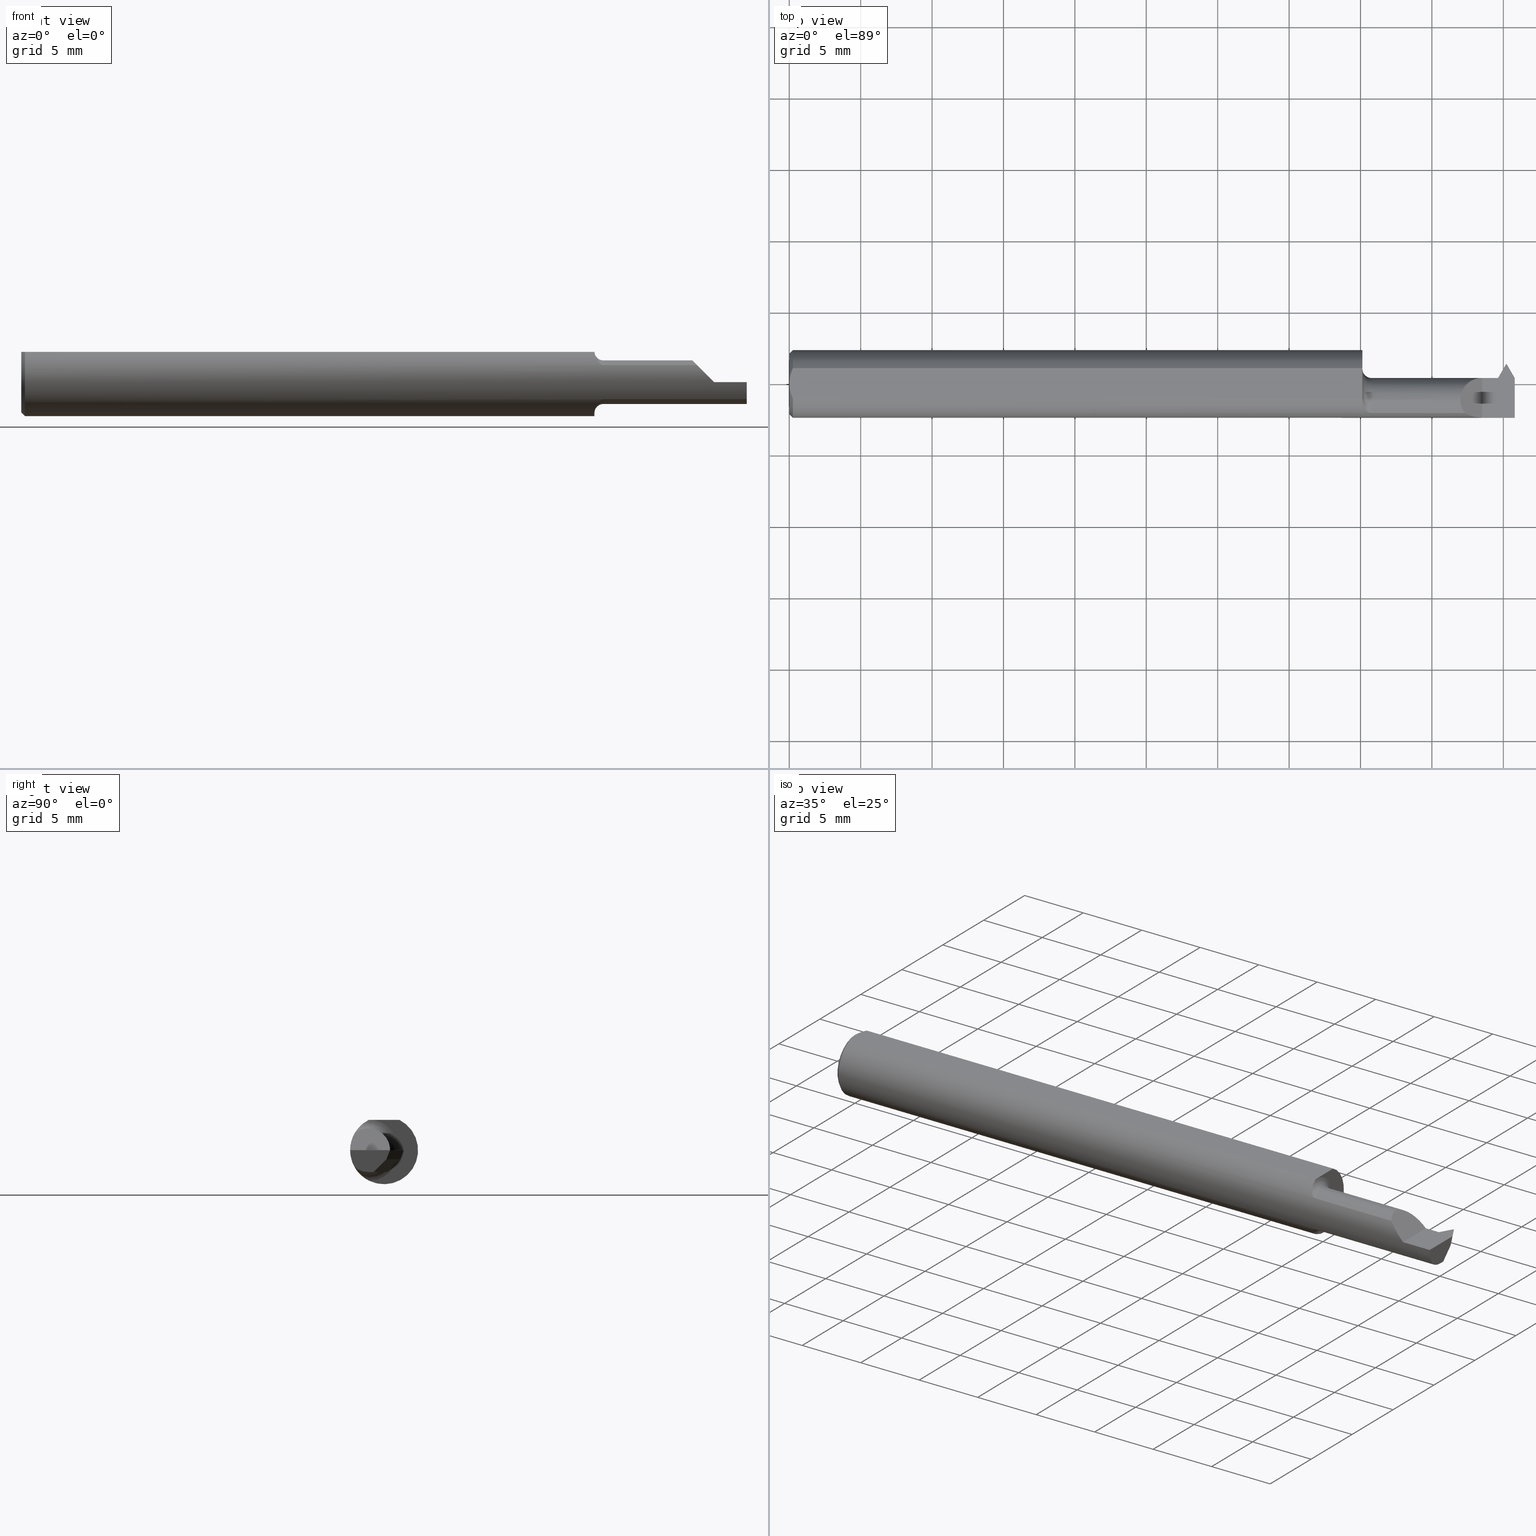
[diagram: canonical four-view strip — front | top / right | iso, engineering-drawing reading convention]
A machine part, canonical four-view strip (front | top / right | iso — engineering-drawing reading convention). The complete STEP part file that produces these views, byte-faithful:
ISO-10303-21;
HEADER;
FILE_DESCRIPTION (( 'STEP AP203' ),
    '1' );
FILE_NAME ('230166-TT150350.STEP',
    '2025-04-24T23:00:52',
    ( '' ),
    ( '' ),
    'SwSTEP 2.0',
    'SolidWorks 2024',
    '' );
FILE_SCHEMA (( 'CONFIG_CONTROL_DESIGN' ));
ENDSEC;

DATA;
#1 = CARTESIAN_POINT ( 'NONE',  ( 1.954060689770794390, 0.01640000000000000138, 0.000000000000000000 ) ) ;
#2 = ADVANCED_FACE ( 'NONE', ( #12 ), #865, .T. ) ;
#3 = EDGE_CURVE ( 'NONE', #419, #258, #812, .T. ) ;
#4 = ORIENTED_EDGE ( 'NONE', *, *, #611, .F. ) ;
#5 = CARTESIAN_POINT ( 'NONE',  ( 1.604999999999999982, -0.08098532110091725966, 0.04692907165266890779 ) ) ;
#6 = VECTOR ( 'NONE', #91, 39.37007874015748143 ) ;
#7 = ADVANCED_FACE ( 'NONE', ( #106 ), #160, .F. ) ;
#8 = LINE ( 'NONE', #421, #20 ) ;
#9 = ORIENTED_EDGE ( 'NONE', *, *, #845, .T. ) ;
#10 = DIRECTION ( 'NONE',  ( -0.8493849684870443673, -0.4903926402016102193, 0.1950903220161287477 ) ) ;
#11 = LINE ( 'NONE', #564, #755 ) ;
#12 = FACE_OUTER_BOUND ( 'NONE', #356, .T. ) ;
#13 = EDGE_CURVE ( 'NONE', #851, #14, #469, .T. ) ;
#14 = VERTEX_POINT ( 'NONE', #877 ) ;
#15 = DIRECTION ( 'NONE',  ( 0.000000000000000000, 0.000000000000000000, -1.000000000000000000 ) ) ;
#16 = DIRECTION ( 'NONE',  ( 0.000000000000000000, 1.000000000000000000, 0.000000000000000000 ) ) ;
#17 = VECTOR ( 'NONE', #368, 39.37007874015748854 ) ;
#18 = ORIENTED_EDGE ( 'NONE', *, *, #234, .T. ) ;
#19 = CYLINDRICAL_SURFACE ( 'NONE', #813, 0.06000000000000010880 ) ;
#20 = VECTOR ( 'NONE', #147, 39.37007874015748143 ) ;
#21 = CARTESIAN_POINT ( 'NONE',  ( 1.943946148618878711, 0.01485783581530495702, -0.01565785573287657370 ) ) ;
#22 = AXIS2_PLACEMENT_3D ( 'NONE', #24, #307, #524 ) ;
#23 = ORIENTED_EDGE ( 'NONE', *, *, #902, .F. ) ;
#24 = CARTESIAN_POINT ( 'NONE',  ( 1.963203925300547770, -1.915580742660970559, 0.3015290722966430526 ) ) ;
#25 = CARTESIAN_POINT ( 'NONE',  ( 2.000000000000000000, -0.02865073613549888945, -0.06000000000000009492 ) ) ;
#26 = CC_DESIGN_APPROVAL ( #353, ( #262 ) ) ;
#27 = ORIENTED_EDGE ( 'NONE', *, *, #645, .T. ) ;
#28 = PLANE ( 'NONE',  #756 ) ;
#29 = AXIS2_PLACEMENT_3D ( 'NONE', #327, #186, #605 ) ;
#30 = LINE ( 'NONE', #311, #176 ) ;
#31 = VERTEX_POINT ( 'NONE', #433 ) ;
#32 = ORIENTED_EDGE ( 'NONE', *, *, #736, .F. ) ;
#33 = CARTESIAN_POINT ( 'NONE',  ( 2.999519565323742037E-32, -0.09359999999999998876, 2.449293598294716768E-16 ) ) ;
#34 = CARTESIAN_POINT ( 'NONE',  ( 1.975910489186450070, 0.009299344354121510947, -0.06000000000000009492 ) ) ;
#35 = ORIENTED_EDGE ( 'NONE', *, *, #142, .T. ) ;
#36 = VECTOR ( 'NONE', #38, 39.37007874015748854 ) ;
#37 = ORIENTED_EDGE ( 'NONE', *, *, #800, .F. ) ;
#38 = DIRECTION ( 'NONE',  ( 0.4999999999999949485, 0.8660254037844414832, -0.000000000000000000 ) ) ;
#39 = CARTESIAN_POINT ( 'NONE',  ( 1.954060689770794390, 0.01640000000000000138, 0.000000000000000000 ) ) ;
#40 = ORIENTED_EDGE ( 'NONE', *, *, #81, .T. ) ;
#41 = ORGANIZATION ( 'UNSPECIFIED', 'UNSPECIFIED', '' ) ;
#42 = ORIENTED_EDGE ( 'NONE', *, *, #493, .F. ) ;
#43 = CARTESIAN_POINT ( 'NONE',  ( 0.000000000000000000, 0.000000000000000000, 0.08359999999999992437 ) ) ;
#44 = ADVANCED_FACE ( 'NONE', ( #154 ), #540, .F. ) ;
#45 = ORIENTED_EDGE ( 'NONE', *, *, #78, .F. ) ;
#46 = ORIENTED_EDGE ( 'NONE', *, *, #252, .F. ) ;
#47 = SECURITY_CLASSIFICATION_LEVEL ( 'unclassified' ) ;
#48 = CARTESIAN_POINT ( 'NONE',  ( 1.956990757487067079, 0.01077285534794741179, -0.02540405621110922510 ) ) ;
#49 = CARTESIAN_POINT ( 'NONE',  ( 2.049328232372210845, -0.5527090949271177278, -0.7491717006560224545 ) ) ;
#50 = CIRCLE ( 'NONE', #272, 0.06000000000000010880 ) ;
#51 = ORIENTED_EDGE ( 'NONE', *, *, #753, .T. ) ;
#52 = APPROVAL_ROLE ( '' ) ;
#53 = CC_DESIGN_PERSON_AND_ORGANIZATION_ASSIGNMENT ( #63, #133, ( #417 ) ) ;
#54 = CARTESIAN_POINT ( 'NONE',  ( 1.599896904768519645, -0.08038899622277627388, 0.04797029363367905086 ) ) ;
#55 = DIRECTION ( 'NONE',  ( 0.1950903220161286922, 0.000000000000000000, 0.9807852804032303196 ) ) ;
#56 = ADVANCED_FACE ( 'NONE', ( #383 ), #717, .F. ) ;
#57 = ORIENTED_EDGE ( 'NONE', *, *, #297, .T. ) ;
#58 = COORDINATED_UNIVERSAL_TIME_OFFSET ( 8, 0, .BEHIND. ) ;
#59 = CARTESIAN_POINT ( 'NONE',  ( 2.000000000000000000, 0.006349263864501371486, -0.02499999999999975853 ) ) ;
#60 = DIRECTION ( 'NONE',  ( 0.4999999999999950595, 0.8660254037844415942, 0.000000000000000000 ) ) ;
#61 = VECTOR ( 'NONE', #261, 39.37007874015748143 ) ;
#62 = VERTEX_POINT ( 'NONE', #894 ) ;
#63 = PERSON_AND_ORGANIZATION ( #89, #41 ) ;
#64 = VECTOR ( 'NONE', #633, 39.37007874015748854 ) ;
#65 = CARTESIAN_POINT ( 'NONE',  ( 1.594147244866249480, -0.07760540797414829106, 0.05237236133055872545 ) ) ;
#66 = CARTESIAN_POINT ( 'NONE',  ( 1.957068903166937490, 0.01029554025176964566, -0.02636921982137713227 ) ) ;
#67 = EDGE_CURVE ( 'NONE', #744, #851, #752, .T. ) ;
#68 = ADVANCED_FACE ( 'NONE', ( #277 ), #692, .T. ) ;
#69 = ORIENTED_EDGE ( 'NONE', *, *, #315, .F. ) ;
#70 = DIRECTION ( 'NONE',  ( 1.000000000000000000, 0.000000000000000000, -0.000000000000000000 ) ) ;
#71 = LINE ( 'NONE', #265, #381 ) ;
#72 = EDGE_LOOP ( 'NONE', ( #730, #819, #580, #701, #646, #121, #218, #141, #680, #116, #713, #324 ) ) ;
#73 = PLANE ( 'NONE',  #333 ) ;
#74 = ADVANCED_FACE ( 'NONE', ( #758 ), #400, .F. ) ;
#75 = DIRECTION ( 'NONE',  ( -1.000000000000000000, -0.000000000000000000, -0.000000000000000000 ) ) ;
#76 = PRODUCT ( '230166-TT150350', '230166-TT150350', '', ( #620 ) ) ;
#77 = EDGE_LOOP ( 'NONE', ( #312, #452, #436, #708, #544, #515 ) ) ;
#78 = EDGE_CURVE ( 'NONE', #613, #769, #130, .T. ) ;
#79 = CARTESIAN_POINT ( 'NONE',  ( 1.956697580114520996, 0.01183277195065880402, -0.02296100594190202820 ) ) ;
#80 = LINE ( 'NONE', #355, #895 ) ;
#81 = EDGE_CURVE ( 'NONE', #263, #606, #621, .T. ) ;
#82 = EDGE_LOOP ( 'NONE', ( #844, #754, #814, #45 ) ) ;
#83 = FACE_OUTER_BOUND ( 'NONE', #82, .T. ) ;
#84 = PLANE ( 'NONE',  #893 ) ;
#85 = EDGE_CURVE ( 'NONE', #108, #246, #137, .T. ) ;
#86 = CARTESIAN_POINT ( 'NONE',  ( 1.580000000000000071, 0.05439999999999996921, 5.143516556418903512E-17 ) ) ;
#87 = FACE_OUTER_BOUND ( 'NONE', #172, .T. ) ;
#88 = ORIENTED_EDGE ( 'NONE', *, *, #159, .T. ) ;
#89 = PERSON ( 'UNSPECIFIED', 'UNSPECIFIED', 'UNSPECIFIED', ('UNSPECIFIED'), ('UNSPECIFIED'), ('UNSPECIFIED') ) ;
#90 = ORIENTED_EDGE ( 'NONE', *, *, #861, .T. ) ;
#91 = DIRECTION ( 'NONE',  ( 3.726558580289354784E-15, -0.7071067811865434649, -0.7071067811865516806 ) ) ;
#92 = CARTESIAN_POINT ( 'NONE',  ( 1.580000000000000071, -0.04360000000000009701, 0.000000000000000000 ) ) ;
#93 = ORIENTED_EDGE ( 'NONE', *, *, #103, .T. ) ;
#94 = CARTESIAN_POINT ( 'NONE',  ( 1.580028097935717968, -0.03747530080496248167, 0.08359999999999992437 ) ) ;
#95 = CARTESIAN_POINT ( 'NONE',  ( 1.604999999999999982, -0.08098532110091725966, -0.04692907165266892167 ) ) ;
#96 = VECTOR ( 'NONE', #627, 39.37007874015748854 ) ;
#97 = VECTOR ( 'NONE', #233, 39.37007874015748143 ) ;
#98 = FACE_OUTER_BOUND ( 'NONE', #460, .T. ) ;
#99 = CARTESIAN_POINT ( 'NONE',  ( 1.877413950203119297, -0.08929676188099791578, 0.03258604979688042858 ) ) ;
#100 = ADVANCED_FACE ( 'NONE', ( #682 ), #337, .F. ) ;
#101 = CIRCLE ( 'NONE', #378, 0.06000000000000012268 ) ;
#102 = VERTEX_POINT ( 'NONE', #485 ) ;
#103 = EDGE_CURVE ( 'NONE', #833, #274, #832, .T. ) ;
#104 = CARTESIAN_POINT ( 'NONE',  ( -3.937007874047004035E-05, 0.009299344354121523090, -0.06000000000000009492 ) ) ;
#105 = DIRECTION ( 'NONE',  ( 1.000000000000000000, 0.000000000000000000, 0.000000000000000000 ) ) ;
#106 = FACE_OUTER_BOUND ( 'NONE', #77, .T. ) ;
#107 = AXIS2_PLACEMENT_3D ( 'NONE', #358, #706, #144 ) ;
#108 = VERTEX_POINT ( 'NONE', #624 ) ;
#109 = PLANE ( 'NONE',  #22 ) ;
#110 = FACE_OUTER_BOUND ( 'NONE', #561, .T. ) ;
#111 = DIRECTION ( 'NONE',  ( 0.000000000000000000, -0.7071067811865515695, 0.7071067811865434649 ) ) ;
#112 = EDGE_CURVE ( 'NONE', #320, #486, #629, .T. ) ;
#113 = VERTEX_POINT ( 'NONE', #397 ) ;
#114 =( NAMED_UNIT ( * ) PLANE_ANGLE_UNIT ( ) SI_UNIT ( $, .RADIAN. ) );
#115 = CARTESIAN_POINT ( 'NONE',  ( 1.580094781996997266, -0.04360000000000008313, -0.08282511696339457663 ) ) ;
#116 = ORIENTED_EDGE ( 'NONE', *, *, #85, .T. ) ;
#117 = EDGE_LOOP ( 'NONE', ( #27, #665, #502 ) ) ;
#118 = APPLICATION_PROTOCOL_DEFINITION ( 'international standard', 'config_control_design', 1994, #722 ) ;
#119 = DIRECTION ( 'NONE',  ( 1.000000000000000000, 0.000000000000000000, 0.000000000000000000 ) ) ;
#120 = DIRECTION ( 'NONE',  ( 0.000000000000000000, 0.000000000000000000, 1.000000000000000000 ) ) ;
#121 = ORIENTED_EDGE ( 'NONE', *, *, #493, .T. ) ;
#122 = CARTESIAN_POINT ( 'NONE',  ( 1.587498641497527396, -0.07093482612079118899, 0.06125760364160525578 ) ) ;
#123 = CIRCLE ( 'NONE', #167, 0.02499999999999993894 ) ;
#124 = EDGE_CURVE ( 'NONE', #720, #258, #71, .T. ) ;
#125 = CARTESIAN_POINT ( 'NONE',  ( 1.580000000000000071, 0.09359999999999996101, 0.000000000000000000 ) ) ;
#126 = CIRCLE ( 'NONE', #418, 0.09360000000000001652 ) ;
#127 = EDGE_LOOP ( 'NONE', ( #181, #177, #51 ) ) ;
#128 = COORDINATED_UNIVERSAL_TIME_OFFSET ( 8, 0, .BEHIND. ) ;
#129 = DIRECTION ( 'NONE',  ( -1.000000000000000000, -0.000000000000000000, -0.000000000000000000 ) ) ;
#130 = LINE ( 'NONE', #415, #575 ) ;
#131 = LOCAL_TIME ( 16, 0, 52.00000000000000000, #275 ) ;
#132 = ORIENTED_EDGE ( 'NONE', *, *, #249, .F. ) ;
#133 = PERSON_AND_ORGANIZATION_ROLE ( 'creator' ) ;
#134 = DIRECTION ( 'NONE',  ( -1.000000000000000000, -0.000000000000000000, -0.000000000000000000 ) ) ;
#135 = CC_DESIGN_DATE_AND_TIME_ASSIGNMENT ( #426, #284, ( #262 ) ) ;
#136 = LINE ( 'NONE', #489, #17 ) ;
#137 =( BOUNDED_CURVE ( )  B_SPLINE_CURVE ( 3, ( #748, #66, #209, #547 ),
 .UNSPECIFIED., .F., .T. ) 
 B_SPLINE_CURVE_WITH_KNOTS ( ( 4, 4 ),
 ( 3.467718172919918462, 3.480466911845812028 ),
 .UNSPECIFIED. ) 
 CURVE ( )  GEOMETRIC_REPRESENTATION_ITEM ( )  RATIONAL_B_SPLINE_CURVE ( ( 1.000000000000000000, 0.9999864558505111578, 0.9999864558505111578, 1.000000000000000000 ) ) 
 REPRESENTATION_ITEM ( '' )  );
#138 = ORIENTED_EDGE ( 'NONE', *, *, #13, .F. ) ;
#139 = CARTESIAN_POINT ( 'NONE',  ( 1.957135601257563362, 0.01018251012558078761, -0.02659777442929792471 ) ) ;
#140 = LINE ( 'NONE', #351, #654 ) ;
#141 = ORIENTED_EDGE ( 'NONE', *, *, #809, .F. ) ;
#142 = EDGE_CURVE ( 'NONE', #554, #565, #140, .T. ) ;
#143 = PLANE ( 'NONE',  #726 ) ;
#144 = DIRECTION ( 'NONE',  ( 0.000000000000000000, -0.3746065934159067412, -0.9271838545667895337 ) ) ;
#145 = ORIENTED_EDGE ( 'NONE', *, *, #3, .F. ) ;
#146 = DIRECTION ( 'NONE',  ( 0.000000000000000000, 0.000000000000000000, -1.000000000000000000 ) ) ;
#147 = DIRECTION ( 'NONE',  ( 0.4999999999999998335, 0.8660254037844388186, 0.000000000000000000 ) ) ;
#148 = AXIS2_PLACEMENT_3D ( 'NONE', #740, #111, #474 ) ;
#149 = ORIENTED_EDGE ( 'NONE', *, *, #416, .T. ) ;
#150 = DIRECTION ( 'NONE',  ( -1.000000000000000000, -0.000000000000000000, -0.000000000000000000 ) ) ;
#151 = DIRECTION ( 'NONE',  ( -1.000000000000000000, -0.000000000000000000, -0.000000000000000000 ) ) ;
#152 = EDGE_CURVE ( 'NONE', #62, #390, #205, .T. ) ;
#153 = EDGE_CURVE ( 'NONE', #774, #880, #562, .T. ) ;
#154 = FACE_OUTER_BOUND ( 'NONE', #127, .T. ) ;
#155 = APPROVAL_STATUS ( 'not_yet_approved' ) ;
#156 = DIRECTION ( 'NONE',  ( 1.000000000000000000, 0.000000000000000000, 0.000000000000000000 ) ) ;
#157 = VECTOR ( 'NONE', #189, 39.37007874015748143 ) ;
#158 = CARTESIAN_POINT ( 'NONE',  ( 1.956931742492089121, 0.01051721843676908796, -0.02590997237873919265 ) ) ;
#159 = EDGE_CURVE ( 'NONE', #744, #798, #501, .T. ) ;
#160 = PLANE ( 'NONE',  #29 ) ;
#161 = CARTESIAN_POINT ( 'NONE',  ( 1.580036165555774419, -0.03978508114644318389, 0.08359999999999995213 ) ) ;
#162 = DIRECTION ( 'NONE',  ( 0.000000000000000000, 0.000000000000000000, 1.000000000000000000 ) ) ;
#163 = APPROVAL ( #193, 'UNSPECIFIED' ) ;
#164 = ORIENTED_EDGE ( 'NONE', *, *, #729, .T. ) ;
#165 = DIRECTION ( 'NONE',  ( 0.9937163541535932731, 0.02183600882225971568, 0.1097770295025544546 ) ) ;
#166 = CARTESIAN_POINT ( 'NONE',  ( 1.580000000000000071, -0.04360000000000009701, 0.06000000000000010880 ) ) ;
#167 = AXIS2_PLACEMENT_3D ( 'NONE', #546, #609, #761 ) ;
#168 = DIRECTION ( 'NONE',  ( 1.000000000000000000, -0.000000000000000000, -0.000000000000000000 ) ) ;
#169 = EDGE_CURVE ( 'NONE', #486, #390, #229, .T. ) ;
#170 = CARTESIAN_POINT ( 'NONE',  ( 1.947060689770794273, 0.01639999999999993546, 0.000000000000000000 ) ) ;
#171 = AXIS2_PLACEMENT_3D ( 'NONE', #581, #738, #792 ) ;
#172 = EDGE_LOOP ( 'NONE', ( #684, #294, #392, #211 ) ) ;
#173 = DIRECTION ( 'NONE',  ( -1.000000000000000000, -0.000000000000000000, -0.000000000000000000 ) ) ;
#174 = CARTESIAN_POINT ( 'NONE',  ( 1.863070928347330790, -0.08098532110091727354, 0.04692907165266886615 ) ) ;
#175 = VERTEX_POINT ( 'NONE', #479 ) ;
#176 = VECTOR ( 'NONE', #236, 39.37007874015748143 ) ;
#177 = ORIENTED_EDGE ( 'NONE', *, *, #482, .T. ) ;
#178 = LINE ( 'NONE', #520, #657 ) ;
#179 = DIRECTION ( 'NONE',  ( 0.000000000000000000, -0.1950903220161286922, -0.9807852804032303196 ) ) ;
#180 = EDGE_CURVE ( 'NONE', #384, #62, #136, .T. ) ;
#181 = ORIENTED_EDGE ( 'NONE', *, *, #396, .T. ) ;
#182 = AXIS2_PLACEMENT_3D ( 'NONE', #543, #826, #120 ) ;
#183 = ORIENTED_EDGE ( 'NONE', *, *, #180, .T. ) ;
#184 = CARTESIAN_POINT ( 'NONE',  ( 0.000000000000000000, 0.000000000000000000, 0.000000000000000000 ) ) ;
#185 = CARTESIAN_POINT ( 'NONE',  ( 0.000000000000000000, 0.000000000000000000, 0.000000000000000000 ) ) ;
#186 = DIRECTION ( 'NONE',  ( -1.000000000000000000, 0.000000000000000000, -0.000000000000000000 ) ) ;
#187 = EDGE_CURVE ( 'NONE', #175, #554, #578, .T. ) ;
#188 = ORIENTED_EDGE ( 'NONE', *, *, #103, .F. ) ;
#189 = DIRECTION ( 'NONE',  ( 0.000000000000000000, 1.000000000000000000, 0.000000000000000000 ) ) ;
#190 = DIRECTION ( 'NONE',  ( 0.7071067811865486830, 0.000000000000000000, -0.7071067811865462405 ) ) ;
#191 = DIRECTION ( 'NONE',  ( 1.000000000000000000, 0.000000000000000000, 0.000000000000000000 ) ) ;
#192 = EDGE_LOOP ( 'NONE', ( #57, #586, #338, #393 ) ) ;
#193 = APPROVAL_STATUS ( 'not_yet_approved' ) ;
#194 = DIRECTION ( 'NONE',  ( 0.003319700952923160166, -0.3746045292502683810, -0.9271787455775548636 ) ) ;
#195 = CARTESIAN_POINT ( 'NONE',  ( 1.962007406423369460, -0.04360000000000009701, -0.06000000000000010186 ) ) ;
#196 = ORIENTED_EDGE ( 'NONE', *, *, #782, .T. ) ;
#197 = PERSON_AND_ORGANIZATION ( #89, #41 ) ;
#198 = DIRECTION ( 'NONE',  ( 1.000000000000000000, 0.000000000000000000, 0.000000000000000000 ) ) ;
#199 = ADVANCED_FACE ( 'NONE', ( #87 ), #499, .F. ) ;
#200 = CARTESIAN_POINT ( 'NONE',  ( 1.960841293643284189, -0.01562901005468752061, -0.05500796697060597595 ) ) ;
#201 = VECTOR ( 'NONE', #824, 39.37007874015748143 ) ;
#202 = ORIENTED_EDGE ( 'NONE', *, *, #360, .T. ) ;
#203 = DATE_AND_TIME ( #403, #434 ) ;
#204 = CYLINDRICAL_SURFACE ( 'NONE', #291, 0.06000000000000010880 ) ;
#205 = LINE ( 'NONE', #49, #64 ) ;
#206 = LOCAL_TIME ( 16, 0, 52.00000000000000000, #58 ) ;
#207 = EDGE_LOOP ( 'NONE', ( #583, #470, #625, #35, #827, #447 ) ) ;
#208 = CARTESIAN_POINT ( 'NONE',  ( 1.580031547830867300, -0.04222443281744116955, -0.08354922978518600218 ) ) ;
#209 = CARTESIAN_POINT ( 'NONE',  ( 1.957000949324736006, 0.01040711119996601784, -0.02613994936591759397 ) ) ;
#210 = ADVANCED_FACE ( 'NONE', ( #213 ), #84, .F. ) ;
#211 = ORIENTED_EDGE ( 'NONE', *, *, #579, .T. ) ;
#212 = CARTESIAN_POINT ( 'NONE',  ( 1.978089510813550111, 0.04429934435411593541, -0.02500000000000528189 ) ) ;
#213 = FACE_OUTER_BOUND ( 'NONE', #619, .T. ) ;
#214 = ORIENTED_EDGE ( 'NONE', *, *, #611, .T. ) ;
#215 = AXIS2_PLACEMENT_3D ( 'NONE', #710, #281, #837 ) ;
#216 = LINE ( 'NONE', #285, #430 ) ;
#217 = FACE_OUTER_BOUND ( 'NONE', #238, .T. ) ;
#218 = ORIENTED_EDGE ( 'NONE', *, *, #340, .F. ) ;
#219 = CC_DESIGN_APPROVAL ( #254, ( #278 ) ) ;
#220 = CARTESIAN_POINT ( 'NONE',  ( 1.874852813742384994, 0.01639999999999999097, 0.03514718625761437815 ) ) ;
#221 = EDGE_CURVE ( 'NONE', #606, #565, #644, .T. ) ;
#222 = CARTESIAN_POINT ( 'NONE',  ( 2.000000000000000000, -0.2500000000000000555, 0.000000000000000000 ) ) ;
#223 = EDGE_LOOP ( 'NONE', ( #132, #570, #225, #93, #422 ) ) ;
#224 = AXIS2_PLACEMENT_3D ( 'NONE', #906, #816, #55 ) ;
#225 = ORIENTED_EDGE ( 'NONE', *, *, #483, .F. ) ;
#226 = EDGE_CURVE ( 'NONE', #31, #335, #8, .T. ) ;
#227 = CC_DESIGN_PERSON_AND_ORGANIZATION_ASSIGNMENT ( #690, #607, ( #76 ) ) ;
#228 = DIRECTION ( 'NONE',  ( -0.7071067811865507924, 0.000000000000000000, 0.7071067811865441310 ) ) ;
#229 =( BOUNDED_CURVE ( )  B_SPLINE_CURVE ( 3, ( #195, #468, #200, #762 ),
 .UNSPECIFIED., .F., .T. ) 
 B_SPLINE_CURVE_WITH_KNOTS ( ( 4, 4 ),
 ( 3.337942194439155408, 4.044391427504221426 ),
 .UNSPECIFIED. ) 
 CURVE ( )  GEOMETRIC_REPRESENTATION_ITEM ( )  RATIONAL_B_SPLINE_CURVE ( ( 1.000000000000000000, 0.9588414113059506860, 0.9588414113059506860, 1.000000000000000000 ) ) 
 REPRESENTATION_ITEM ( '' )  );
#230 = DIRECTION ( 'NONE',  ( -1.000000000000000000, -0.000000000000000000, -0.000000000000000000 ) ) ;
#231 = B_SPLINE_CURVE_WITH_KNOTS ( 'NONE', 3,
 ( #232, #161, #94, #380, #863, #239 ),
 .UNSPECIFIED., .F., .F.,
 ( 4, 2, 4 ),
 ( 0.007267142211220029187, 0.007444781993268449402, 0.007622421775316868750 ),
 .UNSPECIFIED. ) ;
#232 = CARTESIAN_POINT ( 'NONE',  ( 1.580038474846761076, -0.04209513035969859179, 0.08359999999999992437 ) ) ;
#233 = DIRECTION ( 'NONE',  ( -1.000000000000000000, -0.000000000000000000, -0.000000000000000000 ) ) ;
#234 = EDGE_CURVE ( 'NONE', #486, #62, #80, .T. ) ;
#235 = LINE ( 'NONE', #721, #548 ) ;
#236 = DIRECTION ( 'NONE',  ( 1.000000000000000000, 0.000000000000000000, 0.000000000000000000 ) ) ;
#237 = CIRCLE ( 'NONE', #359, 0.06000000000000009492 ) ;
#238 = EDGE_LOOP ( 'NONE', ( #745, #457, #46, #777, #497, #891, #592 ) ) ;
#239 = CARTESIAN_POINT ( 'NONE',  ( 1.580000000000000071, -0.02823640667031252979, 0.08359999999999992437 ) ) ;
#240 = CARTESIAN_POINT ( 'NONE',  ( 1.582237770890208006, -0.06089341461791561438, -0.07174628489556632294 ) ) ;
#241 = AXIS2_PLACEMENT_3D ( 'NONE', #516, #374, #316 ) ;
#242 = CARTESIAN_POINT ( 'NONE',  ( 1.849999999999999423, -0.05731375143557373986, 0.06000000000000012268 ) ) ;
#243 = EDGE_LOOP ( 'NONE', ( #188, #164, #90, #675, #519, #4, #741, #638, #525, #650, #907, #402, #531, #443 ) ) ;
#244 = CARTESIAN_POINT ( 'NONE',  ( 1.975910489186449626, 0.04429934435412642008, -0.02499999999999479722 ) ) ;
#245 = CARTESIAN_POINT ( 'NONE',  ( 1.947060689770794273, 0.01639999999999993546, 0.000000000000000000 ) ) ;
#246 = VERTEX_POINT ( 'NONE', #158 ) ;
#247 = VERTEX_POINT ( 'NONE', #703 ) ;
#248 = DIRECTION ( 'NONE',  ( 0.000000000000000000, 0.000000000000000000, 1.000000000000000000 ) ) ;
#249 = EDGE_CURVE ( 'NONE', #486, #247, #772, .T. ) ;
#250 = ORIENTED_EDGE ( 'NONE', *, *, #445, .T. ) ;
#251 = ORIENTED_EDGE ( 'NONE', *, *, #169, .T. ) ;
#252 = EDGE_CURVE ( 'NONE', #175, #299, #725, .T. ) ;
#253 = CALENDAR_DATE ( 2025, 24, 4 ) ;
#254 = APPROVAL ( #268, 'UNSPECIFIED' ) ;
#255 = CARTESIAN_POINT ( 'NONE',  ( 1.580000000000000071, 0.04209513035969860567, 0.08359999999999989662 ) ) ;
#256 = CARTESIAN_POINT ( 'NONE',  ( 1.863070928347330790, -0.08098532110091727354, 0.04692907165266886615 ) ) ;
#257 = VECTOR ( 'NONE', #194, 39.37007874015748143 ) ;
#258 = VERTEX_POINT ( 'NONE', #1 ) ;
#259 = LINE ( 'NONE', #545, #157 ) ;
#260 = DIRECTION ( 'NONE',  ( 0.000000000000000000, 1.707404996040161800E-15, 1.000000000000000000 ) ) ;
#261 = DIRECTION ( 'NONE',  ( 1.000000000000000000, 0.000000000000000000, 0.000000000000000000 ) ) ;
#262 = SECURITY_CLASSIFICATION ( '', '', #47 ) ;
#263 = VERTEX_POINT ( 'NONE', #711 ) ;
#264 = DIRECTION ( 'NONE',  ( 0.000000000000000000, 0.000000000000000000, 1.000000000000000000 ) ) ;
#265 = CARTESIAN_POINT ( 'NONE',  ( 1.954060689770794390, 0.01640000000000000138, 0.000000000000000000 ) ) ;
#266 = ADVANCED_FACE ( 'NONE', ( #438 ), #293, .T. ) ;
#267 = ORIENTED_EDGE ( 'NONE', *, *, #809, .T. ) ;
#268 = APPROVAL_STATUS ( 'not_yet_approved' ) ;
#269 = FACE_OUTER_BOUND ( 'NONE', #319, .T. ) ;
#270 = EDGE_CURVE ( 'NONE', #246, #113, #50, .T. ) ;
#271 = CARTESIAN_POINT ( 'NONE',  ( 1.580094781996996156, -0.04359999999997420800, 0.08282511696340821850 ) ) ;
#272 = AXIS2_PLACEMENT_3D ( 'NONE', #715, #372, #636 ) ;
#273 = AXIS2_PLACEMENT_3D ( 'NONE', #498, #156, #350 ) ;
#274 = VERTEX_POINT ( 'NONE', #656 ) ;
#275 = COORDINATED_UNIVERSAL_TIME_OFFSET ( 8, 0, .BEHIND. ) ;
#276 = DIRECTION ( 'NONE',  ( 0.4999999999999979461, -0.8660254037844398178, 0.000000000000000000 ) ) ;
#277 = FACE_OUTER_BOUND ( 'NONE', #117, .T. ) ;
#278 = PRODUCT_DEFINITION_FORMATION_WITH_SPECIFIED_SOURCE ( 'ANY', '', #76, .NOT_KNOWN. ) ;
#279 = ORIENTED_EDGE ( 'NONE', *, *, #782, .F. ) ;
#280 = APPROVAL_DATE_TIME ( #362, #353 ) ;
#281 = DIRECTION ( 'NONE',  ( -1.000000000000000000, -0.000000000000000000, -0.000000000000000000 ) ) ;
#282 = FACE_OUTER_BOUND ( 'NONE', #192, .T. ) ;
#283 = ORIENTED_EDGE ( 'NONE', *, *, #3, .T. ) ;
#284 = DATE_TIME_ROLE ( 'classification_date' ) ;
#285 = CARTESIAN_POINT ( 'NONE',  ( 1.977999999999999980, 0.05439999999999999003, 0.000000000000000000 ) ) ;
#286 = DIRECTION ( 'NONE',  ( -1.000000000000000000, -0.000000000000000000, -0.000000000000000000 ) ) ;
#287 = VECTOR ( 'NONE', #198, 39.37007874015748143 ) ;
#288 = ADVANCED_FACE ( 'NONE', ( #282 ), #569, .T. ) ;
#289 = PRODUCT_DEFINITION_SHAPE ( 'NONE', 'NONE',  #417 ) ;
#290 = EDGE_LOOP ( 'NONE', ( #808, #267, #693, #283 ) ) ;
#291 = AXIS2_PLACEMENT_3D ( 'NONE', #330, #134, #264 ) ;
#292 = CARTESIAN_POINT ( 'NONE',  ( 0.000000000000000000, 0.000000000000000000, 0.000000000000000000 ) ) ;
#293 = CYLINDRICAL_SURFACE ( 'NONE', #841, 0.06000000000000010880 ) ;
#294 = ORIENTED_EDGE ( 'NONE', *, *, #406, .T. ) ;
#295 = DIRECTION ( 'NONE',  ( 0.4999999999999948375, -0.8660254037844414832, 0.000000000000000000 ) ) ;
#296 = DIRECTION ( 'NONE',  ( 0.000000000000000000, 0.000000000000000000, 1.000000000000000000 ) ) ;
#297 = EDGE_CURVE ( 'NONE', #325, #658, #11, .T. ) ;
#298 = CC_DESIGN_PERSON_AND_ORGANIZATION_ASSIGNMENT ( #881, #897, ( #262 ) ) ;
#299 = VERTEX_POINT ( 'NONE', #843 ) ;
#300 = PLANE ( 'NONE',  #508 ) ;
#301 = DIRECTION ( 'NONE',  ( -1.000000000000000000, 0.000000000000000000, 1.224646799147358877E-16 ) ) ;
#302 = EDGE_LOOP ( 'NONE', ( #138, #425, #476, #704 ) ) ;
#303 = LINE ( 'NONE', #33, #518 ) ;
#304 = CARTESIAN_POINT ( 'NONE',  ( 1.975910489186450070, 0.04429934435412173632, -0.02499999999999975853 ) ) ;
#305 = ADVANCED_FACE ( 'NONE', ( #217 ), #386, .F. ) ;
#306 = ORIENTED_EDGE ( 'NONE', *, *, #861, .F. ) ;
#307 = DIRECTION ( 'NONE',  ( 0.9937163541535932731, 0.02183600882225971568, 0.1097770295025544546 ) ) ;
#308 = LINE ( 'NONE', #446, #408 ) ;
#309 = ORIENTED_EDGE ( 'NONE', *, *, #802, .F. ) ;
#310 = CARTESIAN_POINT ( 'NONE',  ( 1.580094781996996156, -0.04359999999997420800, 0.08282511696340821850 ) ) ;
#311 = CARTESIAN_POINT ( 'NONE',  ( 0.000000000000000000, -0.04209513035969860567, 0.08359999999999989662 ) ) ;
#312 = ORIENTED_EDGE ( 'NONE', *, *, #500, .F. ) ;
#313 = UNCERTAINTY_MEASURE_WITH_UNIT (LENGTH_MEASURE( 1.000000000000000082E-05 ), #742, 'distance_accuracy_value', 'NONE');
#314 = EDGE_CURVE ( 'NONE', #737, #851, #568, .T. ) ;
#315 = EDGE_CURVE ( 'NONE', #263, #896, #555, .T. ) ;
#316 = DIRECTION ( 'NONE',  ( 0.000000000000000000, 0.000000000000000000, -1.000000000000000000 ) ) ;
#317 = CARTESIAN_POINT ( 'NONE',  ( 1.604999999999999982, -0.04360000000000009701, 0.000000000000000000 ) ) ;
#318 = VECTOR ( 'NONE', #651, 39.37007874015748143 ) ;
#319 = EDGE_LOOP ( 'NONE', ( #670, #149, #526, #576 ) ) ;
#320 = VERTEX_POINT ( 'NONE', #382 ) ;
#321 = FACE_OUTER_BOUND ( 'NONE', #72, .T. ) ;
#322 = CARTESIAN_POINT ( 'NONE',  ( 1.595826073543174406, -0.07869351143461396358, -0.05070416438095075307 ) ) ;
#323 =( GEOMETRIC_REPRESENTATION_CONTEXT ( 3 ) GLOBAL_UNCERTAINTY_ASSIGNED_CONTEXT ( ( #313 ) ) GLOBAL_UNIT_ASSIGNED_CONTEXT ( ( #742, #114, #466 ) ) REPRESENTATION_CONTEXT ( 'NONE', 'WORKASPACE' ) );
#324 = ORIENTED_EDGE ( 'NONE', *, *, #427, .T. ) ;
#325 = VERTEX_POINT ( 'NONE', #25 ) ;
#326 = CARTESIAN_POINT ( 'NONE',  ( 0.000000000000000000, 0.000000000000000000, -0.08360000000000017417 ) ) ;
#327 = CARTESIAN_POINT ( 'NONE',  ( 2.000000000000000000, 0.000000000000000000, 0.000000000000000000 ) ) ;
#328 = ORIENTED_EDGE ( 'NONE', *, *, #751, .F. ) ;
#329 = PERSON_AND_ORGANIZATION ( #89, #41 ) ;
#330 = CARTESIAN_POINT ( 'NONE',  ( 1.580000000000000071, -0.04360000000000009701, 0.000000000000000000 ) ) ;
#331 = ADVANCED_BREP_SHAPE_REPRESENTATION ( '230166-TT150350', ( #859, #817 ), #323 ) ;
#332 = CARTESIAN_POINT ( 'NONE',  ( 1.580038474846761076, -0.04209513035969859179, 0.08359999999999992437 ) ) ;
#333 = AXIS2_PLACEMENT_3D ( 'NONE', #354, #414, #70 ) ;
#334 = EDGE_CURVE ( 'NONE', #798, #247, #101, .T. ) ;
#335 = VERTEX_POINT ( 'NONE', #304 ) ;
#336 = CARTESIAN_POINT ( 'NONE',  ( 1.604999999999999982, -0.08098532110091725966, 0.04692907165266890779 ) ) ;
#337 = PLANE ( 'NONE',  #224 ) ;
#338 = ORIENTED_EDGE ( 'NONE', *, *, #473, .T. ) ;
#339 = DATE_AND_TIME ( #541, #206 ) ;
#340 = EDGE_CURVE ( 'NONE', #352, #419, #602, .T. ) ;
#341 = DIRECTION ( 'NONE',  ( 0.000000000000000000, 0.000000000000000000, -1.000000000000000000 ) ) ;
#342 = CARTESIAN_POINT ( 'NONE',  ( 0.000000000000000000, 0.000000000000000000, 0.08359999999999992437 ) ) ;
#343 = ADVANCED_FACE ( 'NONE', ( #387 ), #868, .F. ) ;
#344 = ORIENTED_EDGE ( 'NONE', *, *, #723, .F. ) ;
#345 = PERSON_AND_ORGANIZATION_ROLE ( 'creator' ) ;
#346 = DIRECTION ( 'NONE',  ( 1.000000000000000000, 0.000000000000000000, 0.000000000000000000 ) ) ;
#347 = B_SPLINE_CURVE_WITH_KNOTS ( 'NONE', 3,
 ( #95, #664, #660, #322, #391, #864, #582, #240, #594, #588 ),
 .UNSPECIFIED., .F., .F.,
 ( 4, 2, 2, 2, 4 ),
 ( 1.965537463864899167E-07, 0.0001973984247313824122, 0.0003946002957163783015, 0.0007890040376863827112, 0.001577811521626391964 ),
 .UNSPECIFIED. ) ;
#348 = CARTESIAN_POINT ( 'NONE',  ( 1.778530344885397296, -0.08098532110091721803, -0.04692907165266892860 ) ) ;
#349 = ORIENTED_EDGE ( 'NONE', *, *, #340, .T. ) ;
#350 = DIRECTION ( 'NONE',  ( 0.000000000000000000, 0.000000000000000000, -1.000000000000000000 ) ) ;
#351 = CARTESIAN_POINT ( 'NONE',  ( 0.000000000000000000, 0.04209513035969860567, 0.08359999999999989662 ) ) ;
#352 = VERTEX_POINT ( 'NONE', #600 ) ;
#353 = APPROVAL ( #155, 'UNSPECIFIED' ) ;
#354 = CARTESIAN_POINT ( 'NONE',  ( 2.191425808082400728, 0.09360000000000001652, 0.08359999999999992437 ) ) ;
#355 = CARTESIAN_POINT ( 'NONE',  ( 1.962099131349653414, -0.04777423165900035462, -0.06000000000000009492 ) ) ;
#356 = EDGE_LOOP ( 'NONE', ( #529, #183, #370, #836, #862, #597, #871, #697 ) ) ;
#357 = LINE ( 'NONE', #86, #318 ) ;
#358 = CARTESIAN_POINT ( 'NONE',  ( -3.937007874047004035E-05, 0.05439999999999999003, 5.143516556418865918E-17 ) ) ;
#359 = AXIS2_PLACEMENT_3D ( 'NONE', #882, #346, #260 ) ;
#360 = EDGE_CURVE ( 'NONE', #31, #720, #743, .T. ) ;
#361 = ORIENTED_EDGE ( 'NONE', *, *, #406, .F. ) ;
#362 = DATE_AND_TIME ( #487, #553 ) ;
#363 = VECTOR ( 'NONE', #663, 39.37007874015748143 ) ;
#364 = PLANE ( 'NONE',  #533 ) ;
#365 = CARTESIAN_POINT ( 'NONE',  ( 0.009999999999999877043, 0.04209513035969860567, 0.08359999999999989662 ) ) ;
#366 = EDGE_LOOP ( 'NONE', ( #250, #873 ) ) ;
#367 = DIRECTION ( 'NONE',  ( 0.4999999999999948375, -0.8660254037844414832, 0.000000000000000000 ) ) ;
#368 = DIRECTION ( 'NONE',  ( -0.4999999999999998335, -0.8660254037844388186, 0.000000000000000000 ) ) ;
#369 = CARTESIAN_POINT ( 'NONE',  ( 1.604999999999999982, -0.04360000000000009007, 0.000000000000000000 ) ) ;
#370 = ORIENTED_EDGE ( 'NONE', *, *, #152, .T. ) ;
#371 = LINE ( 'NONE', #458, #201 ) ;
#372 = DIRECTION ( 'NONE',  ( -1.000000000000000000, -0.000000000000000000, -0.000000000000000000 ) ) ;
#373 = CIRCLE ( 'NONE', #591, 0.09360000000000001652 ) ;
#374 = DIRECTION ( 'NONE',  ( 0.000000000000000000, -1.000000000000000000, 0.000000000000000000 ) ) ;
#375 = CARTESIAN_POINT ( 'NONE',  ( 1.954060689770794390, 0.01640000000000000138, 0.000000000000000000 ) ) ;
#376 = CARTESIAN_POINT ( 'NONE',  ( 1.604999999999999982, -0.04360000000000009701, 0.06000000000000012962 ) ) ;
#377 = DIRECTION ( 'NONE',  ( 0.000000000000000000, -0.7071067811865466846, -0.7071067811865483499 ) ) ;
#378 = AXIS2_PLACEMENT_3D ( 'NONE', #317, #801, #856 ) ;
#379 = EDGE_CURVE ( 'NONE', #263, #774, #30, .T. ) ;
#380 = CARTESIAN_POINT ( 'NONE',  ( 1.580009987567084773, -0.03285560867514938921, 0.08359999999999991049 ) ) ;
#381 = VECTOR ( 'NONE', #411, 39.37007874015748143 ) ;
#382 = CARTESIAN_POINT ( 'NONE',  ( 2.000000000000000000, -0.04360000000000009701, -0.06000000000000009492 ) ) ;
#383 = FACE_OUTER_BOUND ( 'NONE', #869, .T. ) ;
#384 = VERTEX_POINT ( 'NONE', #34 ) ;
#385 = LINE ( 'NONE', #440, #363 ) ;
#386 = TOROIDAL_SURFACE ( 'NONE', #506, 0.08500000000000004774, 0.02499999999999993894 ) ;
#387 = FACE_OUTER_BOUND ( 'NONE', #290, .T. ) ;
#388 = VECTOR ( 'NONE', #173, 39.37007874015748143 ) ;
#389 = ORIENTED_EDGE ( 'NONE', *, *, #226, .F. ) ;
#390 = VERTEX_POINT ( 'NONE', #811 ) ;
#391 = CARTESIAN_POINT ( 'NONE',  ( 1.594156327181491362, -0.07761217964283799453, -0.05236252367802086971 ) ) ;
#392 = ORIENTED_EDGE ( 'NONE', *, *, #736, .T. ) ;
#393 = ORIENTED_EDGE ( 'NONE', *, *, #500, .T. ) ;
#394 = PERSON_AND_ORGANIZATION ( #89, #41 ) ;
#395 = LINE ( 'NONE', #604, #287 ) ;
#396 = EDGE_CURVE ( 'NONE', #274, #465, #347, .T. ) ;
#397 = CARTESIAN_POINT ( 'NONE',  ( 1.956931742492089121, -0.01769002762126079681, -0.05411721843676915028 ) ) ;
#398 = EDGE_LOOP ( 'NONE', ( #603, #214, #88 ) ) ;
#399 = CARTESIAN_POINT ( 'NONE',  ( 1.589679269687736429, -0.07392535378945654101, 0.05756749412466346388 ) ) ;
#400 = PLANE ( 'NONE',  #623 ) ;
#401 = CIRCLE ( 'NONE', #241, 0.02499999999999993894 ) ;
#402 = ORIENTED_EDGE ( 'NONE', *, *, #645, .F. ) ;
#403 = CALENDAR_DATE ( 2025, 24, 4 ) ;
#404 = CARTESIAN_POINT ( 'NONE',  ( 1.956931742492089121, 0.01142719081550852035, -0.02499999999999975853 ) ) ;
#405 = DIRECTION ( 'NONE',  ( 0.000000000000000000, 0.3696476123827671656, 0.9291720199509450051 ) ) ;
#406 = EDGE_CURVE ( 'NONE', #335, #536, #308, .T. ) ;
#407 = ORIENTED_EDGE ( 'NONE', *, *, #560, .T. ) ;
#408 = VECTOR ( 'NONE', #522, 39.37007874015748143 ) ;
#409 = APPROVAL_DATE_TIME ( #203, #254 ) ;
#410 = FACE_OUTER_BOUND ( 'NONE', #366, .T. ) ;
#411 = DIRECTION ( 'NONE',  ( -0.1119276886551787697, 0.1938644435245167885, 0.9746223730498078108 ) ) ;
#412 = ADVANCED_FACE ( 'NONE', ( #110 ), #759, .T. ) ;
#413 = ORIENTED_EDGE ( 'NONE', *, *, #900, .F. ) ;
#414 = DIRECTION ( 'NONE',  ( 0.000000000000000000, 0.000000000000000000, 1.000000000000000000 ) ) ;
#415 = CARTESIAN_POINT ( 'NONE',  ( 2.000000000000000000, 0.01406835999716544994, -0.005596741584370987059 ) ) ;
#416 = EDGE_CURVE ( 'NONE', #14, #798, #724, .T. ) ;
#417 = PRODUCT_DEFINITION ( 'UNKNOWN', '', #278, #683 ) ;
#418 = AXIS2_PLACEMENT_3D ( 'NONE', #840, #150, #631 ) ;
#419 = VERTEX_POINT ( 'NONE', #245 ) ;
#420 = DIRECTION ( 'NONE',  ( 0.000000000000000000, 0.000000000000000000, -1.000000000000000000 ) ) ;
#421 = CARTESIAN_POINT ( 'NONE',  ( 1.956931742492089121, 0.01142719081550852035, -0.02499999999999975853 ) ) ;
#422 = ORIENTED_EDGE ( 'NONE', *, *, #753, .F. ) ;
#423 = CARTESIAN_POINT ( 'NONE',  ( 1.580000000000000071, 0.000000000000000000, 0.000000000000000000 ) ) ;
#424 = DIRECTION ( 'NONE',  ( 0.7745966692414856247, 0.4472135954999565954, -0.4472135954999555962 ) ) ;
#425 = ORIENTED_EDGE ( 'NONE', *, *, #314, .F. ) ;
#426 = DATE_AND_TIME ( #810, #131 ) ;
#427 = EDGE_CURVE ( 'NONE', #113, #390, #666, .T. ) ;
#428 = FACE_OUTER_BOUND ( 'NONE', #848, .T. ) ;
#429 = CARTESIAN_POINT ( 'NONE',  ( 0.004492168231814527152, 0.02859366993844192698, 0.08359999999999991049 ) ) ;
#430 = VECTOR ( 'NONE', #367, 39.37007874015748854 ) ;
#431 = FACE_OUTER_BOUND ( 'NONE', #207, .T. ) ;
#432 = CARTESIAN_POINT ( 'NONE',  ( 0.000000000000000000, 0.000000000000000000, 0.08359999999999992437 ) ) ;
#433 = CARTESIAN_POINT ( 'NONE',  ( 1.956931742492089121, 0.01142719081550852035, -0.02499999999999975853 ) ) ;
#434 = LOCAL_TIME ( 16, 0, 52.00000000000000000, #128 ) ;
#435 = B_SPLINE_CURVE_WITH_KNOTS ( 'NONE', 3,
 ( #478, #208, #484, #747 ),
 .UNSPECIFIED., .F., .F.,
 ( 4, 4 ),
 ( 0.001577811521626391964, 0.001696640922079448947 ),
 .UNSPECIFIED. ) ;
#436 = ORIENTED_EDGE ( 'NONE', *, *, #900, .T. ) ;
#437 = CARTESIAN_POINT ( 'NONE',  ( 1.863070928347330790, -0.08098532110091727354, 0.04692907165266886615 ) ) ;
#438 = FACE_OUTER_BOUND ( 'NONE', #223, .T. ) ;
#439 = ORIENTED_EDGE ( 'NONE', *, *, #632, .F. ) ;
#440 = CARTESIAN_POINT ( 'NONE',  ( 1.910000000000000142, -0.2500000000000000555, 1.102182119232621301E-17 ) ) ;
#441 = LINE ( 'NONE', #551, #688 ) ;
#442 = AXIS2_PLACEMENT_3D ( 'NONE', #292, #557, #15 ) ;
#443 = ORIENTED_EDGE ( 'NONE', *, *, #396, .F. ) ;
#444 = CARTESIAN_POINT ( 'NONE',  ( 1.579999999999999627, 0.01183277195067015779, -0.02296100594192246672 ) ) ;
#445 = EDGE_CURVE ( 'NONE', #246, #113, #455, .T. ) ;
#446 = CARTESIAN_POINT ( 'NONE',  ( 1.975978223227237596, 0.05194264681521622296, -0.006082162561859027518 ) ) ;
#447 = ORIENTED_EDGE ( 'NONE', *, *, #81, .F. ) ;
#448 = FACE_OUTER_BOUND ( 'NONE', #884, .T. ) ;
#449 = CARTESIAN_POINT ( 'NONE',  ( 1.942493461721471304, 0.01183277195067697005, -0.02296100594190596950 ) ) ;
#450 = DIRECTION ( 'NONE',  ( 1.000000000000000000, 9.756599977372054276E-15, -0.000000000000000000 ) ) ;
#451 = CLOSED_SHELL ( 'NONE', ( #44, #305, #412, #786, #567, #7, #266, #653, #56, #764, #74, #831, #878, #343, #671, #637, #210, #707, #829, #618, #886, #68, #199, #100, #2, #530, #288 ) ) ;
#452 = ORIENTED_EDGE ( 'NONE', *, *, #78, .T. ) ;
#453 = EDGE_CURVE ( 'NONE', #335, #794, #728, .T. ) ;
#454 = DIRECTION ( 'NONE',  ( 0.1914804539553231211, 0.1914804539553249529, 0.9626372481397788006 ) ) ;
#455 = LINE ( 'NONE', #739, #773 ) ;
#456 = DIRECTION ( 'NONE',  ( -0.7745966692414839594, 0.4472135954999580387, -0.4472135954999569285 ) ) ;
#457 = ORIENTED_EDGE ( 'NONE', *, *, #521, .T. ) ;
#458 = CARTESIAN_POINT ( 'NONE',  ( 2.000000000000000000, 0.000000000000000000, 0.000000000000000000 ) ) ;
#459 = CARTESIAN_POINT ( 'NONE',  ( 1.977999999999999980, 0.05439999999999999003, 0.000000000000000000 ) ) ;
#460 = EDGE_LOOP ( 'NONE', ( #309, #407, #857 ) ) ;
#461 = VERTEX_POINT ( 'NONE', #459 ) ;
#462 = DIRECTION ( 'NONE',  ( 0.000000000000000000, 0.000000000000000000, 1.000000000000000000 ) ) ;
#463 = CARTESIAN_POINT ( 'NONE',  ( 1.584005041357615218, -0.06425957438758486684, 0.06822719883027100751 ) ) ;
#464 = CARTESIAN_POINT ( 'NONE',  ( 0.009999999999999877043, -0.04209513035969860567, 0.08359999999999989662 ) ) ;
#465 = VERTEX_POINT ( 'NONE', #115 ) ;
#466 =( NAMED_UNIT ( * ) SI_UNIT ( $, .STERADIAN. ) SOLID_ANGLE_UNIT ( ) );
#467 = CARTESIAN_POINT ( 'NONE',  ( 0.000000000000000000, 0.000000000000000000, -0.08360000000000017417 ) ) ;
#468 = CARTESIAN_POINT ( 'NONE',  ( 1.961690299186573894, -0.02916903645767065373, -0.06000000000000012268 ) ) ;
#469 =( BOUNDED_CURVE ( )  B_SPLINE_CURVE ( 3, ( #256, #649, #242, #781 ),
 .UNSPECIFIED., .F., .F. ) 
 B_SPLINE_CURVE_WITH_KNOTS ( ( 4, 4 ),
 ( 5.610499824220562815, 6.283185307179586232 ),
 .UNSPECIFIED. ) 
 CURVE ( )  GEOMETRIC_REPRESENTATION_ITEM ( )  RATIONAL_B_SPLINE_CURVE ( ( 1.000000000000000000, 0.9626453375995702721, 0.9626453375995702721, 1.000000000000000000 ) ) 
 REPRESENTATION_ITEM ( '' )  );
#470 = ORIENTED_EDGE ( 'NONE', *, *, #870, .T. ) ;
#471 = APPROVAL_ROLE ( '' ) ;
#472 = CARTESIAN_POINT ( 'NONE',  ( 1.956697580114520996, 0.01183277195065880402, -0.02296100594190202820 ) ) ;
#473 = EDGE_CURVE ( 'NONE', #794, #613, #441, .T. ) ;
#474 = DIRECTION ( 'NONE',  ( 0.000000000000000000, -0.7071067811865434649, -0.7071067811865515695 ) ) ;
#475 = AXIS2_PLACEMENT_3D ( 'NONE', #587, #668, #248 ) ;
#476 = ORIENTED_EDGE ( 'NONE', *, *, #818, .T. ) ;
#477 = LENGTH_MEASURE_WITH_UNIT ( LENGTH_MEASURE( 0.02539999999999999897 ), #694 );
#478 = CARTESIAN_POINT ( 'NONE',  ( 1.580094781996997266, -0.04360000000000008313, -0.08282511696339457663 ) ) ;
#479 = CARTESIAN_POINT ( 'NONE',  ( 1.580000000000000071, -0.02823640667031252979, 0.08359999999999992437 ) ) ;
#480 = ORIENTED_EDGE ( 'NONE', *, *, #297, .F. ) ;
#481 = AXIS2_PLACEMENT_3D ( 'NONE', #776, #513, #796 ) ;
#482 = EDGE_CURVE ( 'NONE', #465, #247, #123, .T. ) ;
#483 = EDGE_CURVE ( 'NONE', #833, #320, #237, .T. ) ;
#484 = CARTESIAN_POINT ( 'NONE',  ( 1.580000000000000071, -0.04082923651060772763, -0.08423993875433578860 ) ) ;
#485 = CARTESIAN_POINT ( 'NONE',  ( 1.910000000000000142, 0.01640000000000000138, 5.143516556418903512E-17 ) ) ;
#486 = VERTEX_POINT ( 'NONE', #835 ) ;
#487 = CALENDAR_DATE ( 2025, 24, 4 ) ;
#488 = DIRECTION ( 'NONE',  ( 1.000000000000000000, 0.000000000000000000, 0.000000000000000000 ) ) ;
#489 = CARTESIAN_POINT ( 'NONE',  ( 1.997041951305430940, 0.04590011038241356006, -0.06000000000000009492 ) ) ;
#490 = AXIS2_PLACEMENT_3D ( 'NONE', #789, #75, #162 ) ;
#491 = AXIS2_PLACEMENT_3D ( 'NONE', #775, #705, #503 ) ;
#492 = EDGE_LOOP ( 'NONE', ( #662, #760, #672, #344 ) ) ;
#493 = EDGE_CURVE ( 'NONE', #102, #419, #395, .T. ) ;
#494 = CARTESIAN_POINT ( 'NONE',  ( 1.978089510813549889, 0.009299344354121523090, -0.06000000000000009492 ) ) ;
#495 = CARTESIAN_POINT ( 'NONE',  ( 1.580000000000000071, -0.04360000000000009007, -0.06000000000000010880 ) ) ;
#496 = CC_DESIGN_SECURITY_CLASSIFICATION ( #262, ( #278 ) ) ;
#497 = ORIENTED_EDGE ( 'NONE', *, *, #153, .T. ) ;
#498 = CARTESIAN_POINT ( 'NONE',  ( 0.009999999999999877043, 0.000000000000000000, 0.000000000000000000 ) ) ;
#499 = PLANE ( 'NONE',  #107 ) ;
#500 = EDGE_CURVE ( 'NONE', #613, #325, #537, .T. ) ;
#501 = CIRCLE ( 'NONE', #182, 0.06000000000000012268 ) ;
#502 = ORIENTED_EDGE ( 'NONE', *, *, #252, .T. ) ;
#503 = DIRECTION ( 'NONE',  ( 0.000000000000000000, 0.000000000000000000, 1.000000000000000000 ) ) ;
#504 = EDGE_CURVE ( 'NONE', #549, #606, #712, .T. ) ;
#505 = CARTESIAN_POINT ( 'NONE',  ( 1.893422837281476312, -0.09360000000000001652, 0.01657716271852365669 ) ) ;
#506 = AXIS2_PLACEMENT_3D ( 'NONE', #779, #151, #296 ) ;
#507 = ORIENTED_EDGE ( 'NONE', *, *, #504, .T. ) ;
#508 = AXIS2_PLACEMENT_3D ( 'NONE', #577, #488, #146 ) ;
#509 = DIRECTION ( 'NONE',  ( 1.000000000000000000, 0.000000000000000000, 0.000000000000000000 ) ) ;
#510 = DIRECTION ( 'NONE',  ( -1.224646799147358877E-16, 0.000000000000000000, -1.000000000000000000 ) ) ;
#511 = ORIENTED_EDGE ( 'NONE', *, *, #589, .T. ) ;
#512 = CARTESIAN_POINT ( 'NONE',  ( 1.963203925300547770, -1.915580742660970559, 0.3015290722966430526 ) ) ;
#513 = DIRECTION ( 'NONE',  ( 1.000000000000000000, 0.000000000000000000, 0.000000000000000000 ) ) ;
#514 = CC_DESIGN_PERSON_AND_ORGANIZATION_ASSIGNMENT ( #394, #626, ( #278 ) ) ;
#515 = ORIENTED_EDGE ( 'NONE', *, *, #902, .T. ) ;
#516 = CARTESIAN_POINT ( 'NONE',  ( 1.604999999999999982, -0.04360000000000009007, 0.08500000000000004774 ) ) ;
#517 = CARTESIAN_POINT ( 'NONE',  ( 1.959565221403364088, -0.004651785923931341452, -0.04564029601442978756 ) ) ;
#518 = VECTOR ( 'NONE', #855, 39.37007874015748143 ) ;
#519 = ORIENTED_EDGE ( 'NONE', *, *, #67, .F. ) ;
#520 = CARTESIAN_POINT ( 'NONE',  ( 2.049328232372210845, -0.5527090949271177278, -0.7491717006560224545 ) ) ;
#521 = EDGE_CURVE ( 'NONE', #465, #299, #435, .T. ) ;
#522 = DIRECTION ( 'NONE',  ( 0.003319700952923188356, 0.3746045292502683810, 0.9271787455775548636 ) ) ;
#523 = DIRECTION ( 'NONE',  ( 0.000000000000000000, 0.000000000000000000, 1.000000000000000000 ) ) ;
#524 = DIRECTION ( 'NONE',  ( 0.1098032103284578426, 0.000000000000000000, -0.9939533464914560579 ) ) ;
#525 = ORIENTED_EDGE ( 'NONE', *, *, #315, .T. ) ;
#526 = ORIENTED_EDGE ( 'NONE', *, *, #159, .F. ) ;
#527 = DIRECTION ( 'NONE',  ( 0.000000000000000000, 0.000000000000000000, 1.000000000000000000 ) ) ;
#528 = DIRECTION ( 'NONE',  ( 1.000000000000000000, -0.000000000000000000, -0.000000000000000000 ) ) ;
#529 = ORIENTED_EDGE ( 'NONE', *, *, #800, .T. ) ;
#530 = ADVANCED_FACE ( 'NONE', ( #410 ), #622, .T. ) ;
#531 = ORIENTED_EDGE ( 'NONE', *, *, #521, .F. ) ;
#532 = PERSON_AND_ORGANIZATION ( #89, #41 ) ;
#533 = AXIS2_PLACEMENT_3D ( 'NONE', #647, #10, #295 ) ;
#534 = CARTESIAN_POINT ( 'NONE',  ( 0.009999999999999877043, 0.04209513035969860567, 0.08359999999999989662 ) ) ;
#535 = CARTESIAN_POINT ( 'NONE',  ( 1.580053101724402165, -0.04260014805027864671, 0.08334570830718984746 ) ) ;
#536 = VERTEX_POINT ( 'NONE', #766 ) ;
#537 = LINE ( 'NONE', #59, #96 ) ;
#538 = DIRECTION ( 'NONE',  ( -1.000000000000000000, -0.000000000000000000, -0.000000000000000000 ) ) ;
#539 = ORIENTED_EDGE ( 'NONE', *, *, #504, .F. ) ;
#540 = TOROIDAL_SURFACE ( 'NONE', #734, 0.08500000000000004774, 0.02499999999999993894 ) ;
#541 = CALENDAR_DATE ( 2025, 24, 4 ) ;
#542 = CARTESIAN_POINT ( 'NONE',  ( 1.602371787395292513, -0.08098532110167186437, 0.04692907165136673414 ) ) ;
#543 = CARTESIAN_POINT ( 'NONE',  ( 1.604999999999999982, -0.04360000000000009701, 0.000000000000000000 ) ) ;
#544 = ORIENTED_EDGE ( 'NONE', *, *, #483, .T. ) ;
#545 = CARTESIAN_POINT ( 'NONE',  ( 2.000000000000000000, 0.000000000000000000, -0.06000000000000009492 ) ) ;
#546 = CARTESIAN_POINT ( 'NONE',  ( 1.604999999999999982, -0.04360000000000008313, -0.08500000000000004774 ) ) ;
#547 = CARTESIAN_POINT ( 'NONE',  ( 1.956931742492089121, 0.01051721843676908796, -0.02590997237873919265 ) ) ;
#548 = VECTOR ( 'NONE', #454, 39.37007874015748854 ) ;
#549 = VERTEX_POINT ( 'NONE', #326 ) ;
#550 = PRODUCT_RELATED_PRODUCT_CATEGORY ( 'detail', '', ( #76 ) ) ;
#551 = CARTESIAN_POINT ( 'NONE',  ( 1.976999999999999869, 0.04618643243858577135, -0.02499999999999975853 ) ) ;
#552 = CARTESIAN_POINT ( 'NONE',  ( -2.262195879907695790E-16, -0.01462709520273676109, 0.08359999999999992437 ) ) ;
#553 = LOCAL_TIME ( 16, 0, 52.00000000000000000, #571 ) ;
#554 = VERTEX_POINT ( 'NONE', #255 ) ;
#555 = CIRCLE ( 'NONE', #481, 0.09360000000000001652 ) ;
#556 = SHAPE_DEFINITION_REPRESENTATION ( #289, #331 ) ;
#557 = DIRECTION ( 'NONE',  ( -1.000000000000000000, -0.000000000000000000, -0.000000000000000000 ) ) ;
#558 = CARTESIAN_POINT ( 'NONE',  ( 1.976999999999999869, 0.04618643243858577135, -0.02499999999999975853 ) ) ;
#559 = APPLICATION_CONTEXT ( 'configuration controlled 3d designs of mechanical parts and assemblies' ) ;
#560 = EDGE_CURVE ( 'NONE', #108, #720, #699, .T. ) ;
#561 = EDGE_LOOP ( 'NONE', ( #539, #511, #69, #40 ) ) ;
#562 = B_SPLINE_CURVE_WITH_KNOTS ( 'NONE', 3,
 ( #332, #535, #821, #271 ),
 .UNSPECIFIED., .F., .F.,
 ( 4, 4 ),
 ( 4.385876849698906043E-07, 4.292427911745016534E-05 ),
 .UNSPECIFIED. ) ;
#563 = CARTESIAN_POINT ( 'NONE',  ( 2.152060689770794344, -0.04360000000000009701, -0.06000000000000009492 ) ) ;
#564 = CARTESIAN_POINT ( 'NONE',  ( 2.044488393579965813, -0.1057068941631208736, -0.06000000000000009492 ) ) ;
#565 = VERTEX_POINT ( 'NONE', #534 ) ;
#566 = DIRECTION ( 'NONE',  ( 1.000000000000000000, 0.000000000000000000, -0.000000000000000000 ) ) ;
#567 = ADVANCED_FACE ( 'NONE', ( #269 ), #204, .T. ) ;
#568 =( BOUNDED_CURVE ( )  B_SPLINE_CURVE ( 3, ( #784, #505, #99, #174 ),
 .UNSPECIFIED., .F., .T. ) 
 B_SPLINE_CURVE_WITH_KNOTS ( ( 4, 4 ),
 ( 4.712388980384689674, 5.237580787391525661 ),
 .UNSPECIFIED. ) 
 CURVE ( )  GEOMETRIC_REPRESENTATION_ITEM ( )  RATIONAL_B_SPLINE_CURVE ( ( 1.000000000000000000, 0.9771462443114828922, 0.9771462443114828922, 1.000000000000000000 ) ) 
 REPRESENTATION_ITEM ( '' )  );
#569 = PLANE ( 'NONE',  #628 ) ;
#570 = ORIENTED_EDGE ( 'NONE', *, *, #112, .F. ) ;
#571 = COORDINATED_UNIVERSAL_TIME_OFFSET ( 8, 0, .BEHIND. ) ;
#572 = CARTESIAN_POINT ( 'NONE',  ( 2.000000000000000000, 0.01629488223348429798, 0.000000000000000000 ) ) ;
#573 = DIRECTION ( 'NONE',  ( -0.4999999999999978351, 0.8660254037844398178, 0.000000000000000000 ) ) ;
#574 = AXIS2_PLACEMENT_3D ( 'NONE', #125, #191, #768 ) ;
#575 = VECTOR ( 'NONE', #405, 39.37007874015748854 ) ;
#576 = ORIENTED_EDGE ( 'NONE', *, *, #67, .T. ) ;
#577 = CARTESIAN_POINT ( 'NONE',  ( 0.000000000000000000, 0.000000000000000000, 0.000000000000000000 ) ) ;
#578 = LINE ( 'NONE', #648, #767 ) ;
#579 = EDGE_CURVE ( 'NONE', #461, #794, #820, .T. ) ;
#580 = ORIENTED_EDGE ( 'NONE', *, *, #334, .F. ) ;
#581 = CARTESIAN_POINT ( 'NONE',  ( 0.000000000000000000, 0.000000000000000000, 0.000000000000000000 ) ) ;
#582 = CARTESIAN_POINT ( 'NONE',  ( 1.587525166150608236, -0.07098019297973734432, -0.06120797774469886876 ) ) ;
#583 = ORIENTED_EDGE ( 'NONE', *, *, #379, .T. ) ;
#584 = LINE ( 'NONE', #593, #36 ) ;
#585 = CARTESIAN_POINT ( 'NONE',  ( 1.959229519897393690, -0.008617314826187820465, -0.04902437285216700025 ) ) ;
#586 = ORIENTED_EDGE ( 'NONE', *, *, #751, .T. ) ;
#587 = CARTESIAN_POINT ( 'NONE',  ( 1.604999999999999982, -0.04360000000000009007, 0.000000000000000000 ) ) ;
#588 = CARTESIAN_POINT ( 'NONE',  ( 1.580094781996997266, -0.04360000000000008313, -0.08282511696339457663 ) ) ;
#589 = EDGE_CURVE ( 'NONE', #549, #896, #677, .T. ) ;
#590 = DIRECTION ( 'NONE',  ( -1.000000000000000000, -0.000000000000000000, -0.000000000000000000 ) ) ;
#591 = AXIS2_PLACEMENT_3D ( 'NONE', #423, #509, #420 ) ;
#592 = ORIENTED_EDGE ( 'NONE', *, *, #334, .T. ) ;
#593 = CARTESIAN_POINT ( 'NONE',  ( 1.975999999999999979, 0.05439999999999999003, 0.000000000000000000 ) ) ;
#594 = CARTESIAN_POINT ( 'NONE',  ( 1.580514539929745554, -0.05273122244265960462, -0.07801834683017626337 ) ) ;
#595 = CARTESIAN_POINT ( 'NONE',  ( 1.956931742492089121, 0.01142719081550852035, -0.02499999999999975853 ) ) ;
#596 = AXIS2_PLACEMENT_3D ( 'NONE', #185, #105, #805 ) ;
#597 = ORIENTED_EDGE ( 'NONE', *, *, #85, .F. ) ;
#598 = APPROVAL_PERSON_ORGANIZATION ( #639, #353, #709 ) ;
#599 = CARTESIAN_POINT ( 'NONE',  ( 0.009999999999999877043, 0.000000000000000000, -0.09360000000000001652 ) ) ;
#600 = CARTESIAN_POINT ( 'NONE',  ( 1.942493461721471304, 0.01183277195067697005, -0.02296100594190596950 ) ) ;
#601 = VERTEX_POINT ( 'NONE', #830 ) ;
#602 =( BOUNDED_CURVE ( )  B_SPLINE_CURVE ( 3, ( #449, #21, #793, #170 ),
 .UNSPECIFIED., .F., .T. ) 
 B_SPLINE_CURVE_WITH_KNOTS ( ( 4, 4 ),
 ( 1.178097245096163315, 1.570796326794896780 ),
 .UNSPECIFIED. ) 
 CURVE ( )  GEOMETRIC_REPRESENTATION_ITEM ( )  RATIONAL_B_SPLINE_CURVE ( ( 1.000000000000000000, 0.9871901869354863246, 0.9871901869354863246, 1.000000000000000000 ) ) 
 REPRESENTATION_ITEM ( '' )  );
#603 = ORIENTED_EDGE ( 'NONE', *, *, #791, .F. ) ;
#604 = CARTESIAN_POINT ( 'NONE',  ( 1.580000000000000071, 0.01640000000000000138, 5.143516556418903512E-17 ) ) ;
#605 = DIRECTION ( 'NONE',  ( -0.000000000000000000, 0.000000000000000000, 1.000000000000000000 ) ) ;
#606 = VERTEX_POINT ( 'NONE', #43 ) ;
#607 = PERSON_AND_ORGANIZATION_ROLE ( 'design_owner' ) ;
#608 = AXIS2_PLACEMENT_3D ( 'NONE', #563, #783, #566 ) ;
#609 = DIRECTION ( 'NONE',  ( -0.000000000000000000, 1.000000000000000000, 1.224646799147353207E-16 ) ) ;
#610 = CARTESIAN_POINT ( 'NONE',  ( 1.778530344885397296, -0.08098532110091721803, 0.04692907165266892860 ) ) ;
#611 = EDGE_CURVE ( 'NONE', #880, #744, #616, .T. ) ;
#612 = VECTOR ( 'NONE', #528, 39.37007874015748143 ) ;
#613 = VERTEX_POINT ( 'NONE', #615 ) ;
#614 = DIRECTION ( 'NONE',  ( 1.000000000000000000, 0.000000000000000000, 0.000000000000000000 ) ) ;
#615 = CARTESIAN_POINT ( 'NONE',  ( 2.000000000000000000, 0.006349263864501371486, -0.02499999999999975853 ) ) ;
#616 = B_SPLINE_CURVE_WITH_KNOTS ( 'NONE', 3,
 ( #825, #750, #815, #899, #463, #122, #399, #65, #686, #54, #542, #336 ),
 .UNSPECIFIED., .F., .F.,
 ( 4, 2, 2, 2, 2, 4 ),
 ( 4.292427911745016534E-05, 0.0004322602379663570806, 0.0008215961968152643482, 0.001210932155664171724, 0.001405600135088625521, 0.001600268114513079317 ),
 .UNSPECIFIED. ) ;
#617 = CARTESIAN_POINT ( 'NONE',  ( 2.152060689770794344, -0.04360000000000009701, -0.06000000000000009492 ) ) ;
#618 = ADVANCED_FACE ( 'NONE', ( #887 ), #300, .F. ) ;
#619 = EDGE_LOOP ( 'NONE', ( #32, #279, #145, #42, #735, #306, #413, #439 ) ) ;
#620 = MECHANICAL_CONTEXT ( 'NONE', #559, 'mechanical' ) ;
#621 = B_SPLINE_CURVE_WITH_KNOTS ( 'NONE', 3,
 ( #464, #696, #552, #342 ),
 .UNSPECIFIED., .F., .F.,
 ( 4, 4 ),
 ( 0.0006429768761302141322, 0.001744210492668867019 ),
 .UNSPECIFIED. ) ;
#622 = PLANE ( 'NONE',  #828 ) ;
#623 = AXIS2_PLACEMENT_3D ( 'NONE', #687, #901, #60 ) ;
#624 = CARTESIAN_POINT ( 'NONE',  ( 1.957135601257563362, 0.01018251012558078761, -0.02659777442929792471 ) ) ;
#625 = ORIENTED_EDGE ( 'NONE', *, *, #187, .T. ) ;
#626 = PERSON_AND_ORGANIZATION_ROLE ( 'design_supplier' ) ;
#627 = DIRECTION ( 'NONE',  ( 0.000000000000000000, -0.7071067811865466846, -0.7071067811865483499 ) ) ;
#628 = AXIS2_PLACEMENT_3D ( 'NONE', #558, #424, #838 ) ;
#629 = LINE ( 'NONE', #617, #850 ) ;
#630 = EDGE_LOOP ( 'NONE', ( #903, #507 ) ) ;
#631 = DIRECTION ( 'NONE',  ( 0.000000000000000000, 0.000000000000000000, 1.000000000000000000 ) ) ;
#632 = EDGE_CURVE ( 'NONE', #461, #769, #216, .T. ) ;
#633 = DIRECTION ( 'NONE',  ( -0.1001467196778741131, 0.6114561120415303863, 0.7849153187349682259 ) ) ;
#634 = ORIENTED_EDGE ( 'NONE', *, *, #854, .F. ) ;
#635 = CARTESIAN_POINT ( 'NONE',  ( 1.910000000000000142, 0.01640000000000000138, 5.143516556418903512E-17 ) ) ;
#636 = DIRECTION ( 'NONE',  ( 0.000000000000000000, 8.537024980200807027E-16, -1.000000000000000000 ) ) ;
#637 = ADVANCED_FACE ( 'NONE', ( #778 ), #143, .F. ) ;
#638 = ORIENTED_EDGE ( 'NONE', *, *, #379, .F. ) ;
#639 = PERSON_AND_ORGANIZATION ( #89, #41 ) ;
#640 = CARTESIAN_POINT ( 'NONE',  ( 1.910000000000000142, -0.09360000000000005815, 1.102182119232621301E-17 ) ) ;
#641 = DIRECTION ( 'NONE',  ( -0.02196878290947736068, 0.9997586571655562304, 0.000000000000000000 ) ) ;
#642 = VECTOR ( 'NONE', #230, 39.37007874015748143 ) ;
#643 = CIRCLE ( 'NONE', #273, 0.09360000000000001652 ) ;
#644 = B_SPLINE_CURVE_WITH_KNOTS ( 'NONE', 3,
 ( #432, #652, #853, #429, #847, #365 ),
 .UNSPECIFIED., .F., .F.,
 ( 4, 2, 4 ),
 ( 0.001744210492668867019, 0.002295110172257195866, 0.002846009851845524713 ),
 .UNSPECIFIED. ) ;
#645 = EDGE_CURVE ( 'NONE', #299, #554, #373, .T. ) ;
#646 = ORIENTED_EDGE ( 'NONE', *, *, #667, .T. ) ;
#647 = CARTESIAN_POINT ( 'NONE',  ( 1.977999999999999980, 0.05439999999999999003, 0.000000000000000000 ) ) ;
#648 = CARTESIAN_POINT ( 'NONE',  ( 1.580000000000000071, 0.09360000000000001652, 0.08359999999999992437 ) ) ;
#649 = CARTESIAN_POINT ( 'NONE',  ( 1.854526044998712875, -0.07025909403846850032, 0.05547395500128696200 ) ) ;
#650 = ORIENTED_EDGE ( 'NONE', *, *, #723, .T. ) ;
#651 = DIRECTION ( 'NONE',  ( 1.000000000000000000, 0.000000000000000000, 0.000000000000000000 ) ) ;
#652 = CARTESIAN_POINT ( 'NONE',  ( -2.346264590017496984E-16, 0.007317304829308919449, 0.08359999999999995213 ) ) ;
#653 = ADVANCED_FACE ( 'NONE', ( #428 ), #908, .F. ) ;
#654 = VECTOR ( 'NONE', #538, 39.37007874015748143 ) ;
#655 = CARTESIAN_POINT ( 'NONE',  ( 1.580000000000000071, -0.04360000000000009701, 0.000000000000000000 ) ) ;
#656 = CARTESIAN_POINT ( 'NONE',  ( 1.604999999999999982, -0.08098532110091725966, -0.04692907165266892167 ) ) ;
#657 = VECTOR ( 'NONE', #727, 39.37007874015748854 ) ;
#658 = VERTEX_POINT ( 'NONE', #494 ) ;
#659 = CARTESIAN_POINT ( 'NONE',  ( 1.978089510813550111, 0.04429934435412112570, -0.02500000000000007425 ) ) ;
#660 = CARTESIAN_POINT ( 'NONE',  ( 1.599926490776608423, -0.08039993130174968861, -0.04795239383132110511 ) ) ;
#661 = CC_DESIGN_APPROVAL ( #163, ( #417 ) ) ;
#662 = ORIENTED_EDGE ( 'NONE', *, *, #589, .F. ) ;
#663 = DIRECTION ( 'NONE',  ( -0.000000000000000000, 1.000000000000000000, -0.000000000000000000 ) ) ;
#664 = CARTESIAN_POINT ( 'NONE',  ( 1.602366886948793478, -0.08098532110091721803, -0.04692907165266896330 ) ) ;
#665 = ORIENTED_EDGE ( 'NONE', *, *, #187, .F. ) ;
#666 =( BOUNDED_CURVE ( )  B_SPLINE_CURVE ( 3, ( #872, #860, #585, #517 ),
 .UNSPECIFIED., .F., .T. ) 
 B_SPLINE_CURVE_WITH_KNOTS ( ( 4, 4 ),
 ( 2.802718395333773760, 3.062643723257409079 ),
 .UNSPECIFIED. ) 
 CURVE ( )  GEOMETRIC_REPRESENTATION_ITEM ( )  RATIONAL_B_SPLINE_CURVE ( ( 1.000000000000000000, 0.9943778220326511263, 0.9943778220326511263, 1.000000000000000000 ) ) 
 REPRESENTATION_ITEM ( '' )  );
#667 = EDGE_CURVE ( 'NONE', #14, #102, #790, .T. ) ;
#668 = DIRECTION ( 'NONE',  ( -1.000000000000000000, -0.000000000000000000, -0.000000000000000000 ) ) ;
#669 = DIRECTION ( 'NONE',  ( 9.569129644589002102E-15, -0.9807852804032304306, 0.1950903220161287199 ) ) ;
#670 = ORIENTED_EDGE ( 'NONE', *, *, #13, .T. ) ;
#671 = ADVANCED_FACE ( 'NONE', ( #770 ), #846, .T. ) ;
#672 = ORIENTED_EDGE ( 'NONE', *, *, #221, .T. ) ;
#673 = FACE_OUTER_BOUND ( 'NONE', #398, .T. ) ;
#674 = CARTESIAN_POINT ( 'NONE',  ( -3.937007874047004035E-05, 0.04429934435412120897, -0.02500000000000000486 ) ) ;
#675 = ORIENTED_EDGE ( 'NONE', *, *, #314, .T. ) ;
#676 = ORIENTED_EDGE ( 'NONE', *, *, #180, .F. ) ;
#677 = LINE ( 'NONE', #467, #879 ) ;
#678 = DIRECTION ( 'NONE',  ( -0.4999999999999998335, -0.8660254037844388186, 0.000000000000000000 ) ) ;
#679 = CC_DESIGN_PERSON_AND_ORGANIZATION_ASSIGNMENT ( #329, #345, ( #278 ) ) ;
#680 = ORIENTED_EDGE ( 'NONE', *, *, #560, .F. ) ;
#681 = APPROVAL_DATE_TIME ( #746, #163 ) ;
#682 = FACE_OUTER_BOUND ( 'NONE', #839, .T. ) ;
#683 = DESIGN_CONTEXT ( 'detailed design', #722, 'design' ) ;
#684 = ORIENTED_EDGE ( 'NONE', *, *, #453, .F. ) ;
#685 = AXIS2_PLACEMENT_3D ( 'NONE', #757, #129, #341 ) ;
#686 = CARTESIAN_POINT ( 'NONE',  ( 1.595834938507529221, -0.07869581624978984336, 0.05070018037232462693 ) ) ;
#687 = CARTESIAN_POINT ( 'NONE',  ( 1.975999999999999979, 0.05439999999999999003, 0.000000000000000000 ) ) ;
#688 = VECTOR ( 'NONE', #276, 39.37007874015748143 ) ;
#689 = ORIENTED_EDGE ( 'NONE', *, *, #112, .T. ) ;
#690 = PERSON_AND_ORGANIZATION ( #89, #41 ) ;
#691 = CARTESIAN_POINT ( 'NONE',  ( 1.956844696498698521, 0.01132314584663564848, -0.02419135219402172507 ) ) ;
#692 = PLANE ( 'NONE',  #574 ) ;
#693 = ORIENTED_EDGE ( 'NONE', *, *, #854, .T. ) ;
#694 =( LENGTH_UNIT ( ) NAMED_UNIT ( * ) SI_UNIT ( $, .METRE. ) );
#695 = CARTESIAN_POINT ( 'NONE',  ( 1.977978201186408880, 0.05685984033480918215, 0.006088318474189526736 ) ) ;
#696 = CARTESIAN_POINT ( 'NONE',  ( 0.004072204388638599876, -0.02891446873729323561, 0.08359999999999992437 ) ) ;
#697 = ORIENTED_EDGE ( 'NONE', *, *, #226, .T. ) ;
#698 = CARTESIAN_POINT ( 'NONE',  ( 1.849999999999999423, -0.04360000000000009701, 0.06000000000000010880 ) ) ;
#699 =( BOUNDED_CURVE ( )  B_SPLINE_CURVE ( 3, ( #139, #48, #691, #472 ),
 .UNSPECIFIED., .F., .T. ) 
 B_SPLINE_CURVE_WITH_KNOTS ( ( 4, 4 ),
 ( 4.449465877166729477, 4.516039439535262545 ),
 .UNSPECIFIED. ) 
 CURVE ( )  GEOMETRIC_REPRESENTATION_ITEM ( )  RATIONAL_B_SPLINE_CURVE ( ( 1.000000000000000000, 0.9996306975005851969, 0.9996306975005851969, 1.000000000000000000 ) ) 
 REPRESENTATION_ITEM ( '' )  );
#700 = DIRECTION ( 'NONE',  ( -1.000000000000000000, -0.000000000000000000, -0.000000000000000000 ) ) ;
#701 = ORIENTED_EDGE ( 'NONE', *, *, #416, .F. ) ;
#702 = CARTESIAN_POINT ( 'NONE',  ( 1.849999999999999201, -0.008452813742385748355, 0.06000000000000010880 ) ) ;
#703 = CARTESIAN_POINT ( 'NONE',  ( 1.604999999999999982, -0.04360000000000009007, -0.06000000000000012962 ) ) ;
#704 = ORIENTED_EDGE ( 'NONE', *, *, #667, .F. ) ;
#705 = DIRECTION ( 'NONE',  ( -1.000000000000000000, -0.000000000000000000, -0.000000000000000000 ) ) ;
#706 = DIRECTION ( 'NONE',  ( 0.000000000000000000, -0.9271838545667895337, 0.3746065934159067412 ) ) ;
#707 = ADVANCED_FACE ( 'NONE', ( #431 ), #73, .T. ) ;
#708 = ORIENTED_EDGE ( 'NONE', *, *, #729, .F. ) ;
#709 = APPROVAL_ROLE ( '' ) ;
#710 = CARTESIAN_POINT ( 'NONE',  ( 1.604999999999999982, -0.04360000000000009701, 0.000000000000000000 ) ) ;
#711 = CARTESIAN_POINT ( 'NONE',  ( 0.009999999999999877043, -0.04209513035969860567, 0.08359999999999989662 ) ) ;
#712 = CIRCLE ( 'NONE', #685, 0.08360000000000017417 ) ;
#713 = ORIENTED_EDGE ( 'NONE', *, *, #270, .T. ) ;
#714 = LINE ( 'NONE', #212, #898 ) ;
#715 = CARTESIAN_POINT ( 'NONE',  ( 1.956931742492089121, -0.04360000000000009701, 0.000000000000000000 ) ) ;
#716 = APPROVAL_PERSON_ORGANIZATION ( #197, #254, #471 ) ;
#717 = PLANE ( 'NONE',  #148 ) ;
#718 = DIRECTION ( 'NONE',  ( 0.1098032103284578426, 0.000000000000000000, -0.9939533464914560579 ) ) ;
#719 = DIRECTION ( 'NONE',  ( 0.000000000000000000, 0.000000000000000000, 1.000000000000000000 ) ) ;
#720 = VERTEX_POINT ( 'NONE', #79 ) ;
#721 = CARTESIAN_POINT ( 'NONE',  ( 1.947060689770794273, 0.01639999999999993546, 1.425016655183462569E-33 ) ) ;
#722 = APPLICATION_CONTEXT ( 'configuration controlled 3d designs of mechanical parts and assemblies' ) ;
#723 = EDGE_CURVE ( 'NONE', #896, #565, #643, .T. ) ;
#724 = LINE ( 'NONE', #166, #97 ) ;
#725 = CIRCLE ( 'NONE', #490, 0.08500000000000004774 ) ;
#726 = AXIS2_PLACEMENT_3D ( 'NONE', #788, #852, #228 ) ;
#727 = DIRECTION ( 'NONE',  ( -0.1001467196778741131, 0.6114561120415303863, 0.7849153187349682259 ) ) ;
#728 = LINE ( 'NONE', #674, #612 ) ;
#729 = EDGE_CURVE ( 'NONE', #833, #601, #126, .T. ) ;
#730 = ORIENTED_EDGE ( 'NONE', *, *, #169, .F. ) ;
#731 = CARTESIAN_POINT ( 'NONE',  ( 2.000000000000000000, -0.08098532110091713476, -0.04692907165266897024 ) ) ;
#732 = VECTOR ( 'NONE', #733, 39.37007874015748143 ) ;
#733 = DIRECTION ( 'NONE',  ( -0.1119276886551787697, 0.1938644435245167885, 0.9746223730498078108 ) ) ;
#734 = AXIS2_PLACEMENT_3D ( 'NONE', #369, #590, #523 ) ;
#735 = ORIENTED_EDGE ( 'NONE', *, *, #818, .F. ) ;
#736 = EDGE_CURVE ( 'NONE', #536, #461, #357, .T. ) ;
#737 = VERTEX_POINT ( 'NONE', #640 ) ;
#738 = DIRECTION ( 'NONE',  ( 1.000000000000000000, 0.000000000000000000, 0.000000000000000000 ) ) ;
#739 = CARTESIAN_POINT ( 'NONE',  ( 1.956931742492089121, 0.01142719081550852035, -0.02499999999999975853 ) ) ;
#740 = CARTESIAN_POINT ( 'NONE',  ( -3.937007874047004035E-05, 0.04429934435412120897, -0.02500000000000000486 ) ) ;
#741 = ORIENTED_EDGE ( 'NONE', *, *, #153, .F. ) ;
#742 =( CONVERSION_BASED_UNIT ( 'INCH', #477 ) LENGTH_UNIT ( ) NAMED_UNIT ( #807 ) );
#743 = LINE ( 'NONE', #39, #732 ) ;
#744 = VERTEX_POINT ( 'NONE', #5 ) ;
#745 = ORIENTED_EDGE ( 'NONE', *, *, #482, .F. ) ;
#746 = DATE_AND_TIME ( #253, #883 ) ;
#747 = CARTESIAN_POINT ( 'NONE',  ( 1.580000000000000071, -0.03941422018348617051, -0.08489687419055939877 ) ) ;
#748 = CARTESIAN_POINT ( 'NONE',  ( 1.957135601257563362, 0.01018251012558078761, -0.02659777442929792471 ) ) ;
#749 = ORIENTED_EDGE ( 'NONE', *, *, #845, .F. ) ;
#750 = CARTESIAN_POINT ( 'NONE',  ( 1.580304672070561134, -0.04816585284211998691, 0.08042160470509923664 ) ) ;
#751 = EDGE_CURVE ( 'NONE', #658, #794, #714, .T. ) ;
#752 = LINE ( 'NONE', #610, #61 ) ;
#753 = EDGE_CURVE ( 'NONE', #247, #274, #842, .T. ) ;
#754 = ORIENTED_EDGE ( 'NONE', *, *, #579, .F. ) ;
#755 = VECTOR ( 'NONE', #573, 39.37007874015748143 ) ;
#756 = AXIS2_PLACEMENT_3D ( 'NONE', #512, #165, #718 ) ;
#757 = CARTESIAN_POINT ( 'NONE',  ( 0.000000000000000000, 0.000000000000000000, 0.000000000000000000 ) ) ;
#758 = FACE_OUTER_BOUND ( 'NONE', #874, .T. ) ;
#759 = CONICAL_SURFACE ( 'NONE', #596, 0.08360000000000017417, 0.7853981633974466137 ) ;
#760 = ORIENTED_EDGE ( 'NONE', *, *, #763, .F. ) ;
#761 = DIRECTION ( 'NONE',  ( 0.000000000000000000, 0.000000000000000000, 1.000000000000000000 ) ) ;
#762 = CARTESIAN_POINT ( 'NONE',  ( 1.959565221403364088, -0.004651785923931341452, -0.04564029601442978756 ) ) ;
#763 = EDGE_CURVE ( 'NONE', #606, #549, #797, .T. ) ;
#764 = ADVANCED_FACE ( 'NONE', ( #83 ), #364, .F. ) ;
#765 = ORIENTED_EDGE ( 'NONE', *, *, #152, .F. ) ;
#766 = CARTESIAN_POINT ( 'NONE',  ( 1.975999999999999979, 0.05439999999999999003, 0.000000000000000000 ) ) ;
#767 = VECTOR ( 'NONE', #16, 39.37007874015748143 ) ;
#768 = DIRECTION ( 'NONE',  ( 0.000000000000000000, 0.000000000000000000, -1.000000000000000000 ) ) ;
#769 = VERTEX_POINT ( 'NONE', #572 ) ;
#770 = FACE_OUTER_BOUND ( 'NONE', #243, .T. ) ;
#771 = TOROIDAL_SURFACE ( 'NONE', #475, 0.08500000000000004774, 0.02499999999999993894 ) ;
#772 = LINE ( 'NONE', #495, #642 ) ;
#773 = VECTOR ( 'NONE', #377, 39.37007874015748854 ) ;
#774 = VERTEX_POINT ( 'NONE', #849 ) ;
#775 = CARTESIAN_POINT ( 'NONE',  ( 0.000000000000000000, 0.000000000000000000, 0.000000000000000000 ) ) ;
#776 = CARTESIAN_POINT ( 'NONE',  ( 0.009999999999999877043, 0.000000000000000000, 0.000000000000000000 ) ) ;
#777 = ORIENTED_EDGE ( 'NONE', *, *, #870, .F. ) ;
#778 = FACE_OUTER_BOUND ( 'NONE', #302, .T. ) ;
#779 = CARTESIAN_POINT ( 'NONE',  ( 1.604999999999999982, -0.04360000000000009007, 0.000000000000000000 ) ) ;
#780 = VECTOR ( 'NONE', #700, 39.37007874015748143 ) ;
#781 = CARTESIAN_POINT ( 'NONE',  ( 1.849999999999999423, -0.04360000000000009701, 0.06000000000000010880 ) ) ;
#782 = EDGE_CURVE ( 'NONE', #258, #536, #584, .T. ) ;
#783 = DIRECTION ( 'NONE',  ( 0.000000000000000000, 0.000000000000000000, 1.000000000000000000 ) ) ;
#784 = CARTESIAN_POINT ( 'NONE',  ( 1.910000000000000142, -0.09360000000000005815, 1.102182119232621301E-17 ) ) ;
#785 = CONICAL_SURFACE ( 'NONE', #171, 0.08360000000000017417, 0.7853981633974466137 ) ;
#786 = ADVANCED_FACE ( 'NONE', ( #321 ), #19, .T. ) ;
#787 = ORIENTED_EDGE ( 'NONE', *, *, #453, .T. ) ;
#788 = CARTESIAN_POINT ( 'NONE',  ( 1.910000000000000142, -0.2500000000000000555, 1.102182119232621301E-17 ) ) ;
#789 = CARTESIAN_POINT ( 'NONE',  ( 1.580000000000000071, -0.04360000000000009701, 0.000000000000000000 ) ) ;
#790 =( BOUNDED_CURVE ( )  B_SPLINE_CURVE ( 3, ( #698, #702, #220, #635 ),
 .UNSPECIFIED., .F., .T. ) 
 B_SPLINE_CURVE_WITH_KNOTS ( ( 4, 4 ),
 ( 0.000000000000000000, 1.570796326794896114 ),
 .UNSPECIFIED. ) 
 CURVE ( )  GEOMETRIC_REPRESENTATION_ITEM ( )  RATIONAL_B_SPLINE_CURVE ( ( 1.000000000000000000, 0.8047378541243650485, 0.8047378541243650485, 1.000000000000000000 ) ) 
 REPRESENTATION_ITEM ( '' )  );
#791 = EDGE_CURVE ( 'NONE', #880, #798, #401, .T. ) ;
#792 = DIRECTION ( 'NONE',  ( 0.000000000000000000, 0.000000000000000000, -1.000000000000000000 ) ) ;
#793 = CARTESIAN_POINT ( 'NONE',  ( 1.945488312803573594, 0.01640000000000002914, -0.007904872823817171018 ) ) ;
#794 = VERTEX_POINT ( 'NONE', #659 ) ;
#795 = LINE ( 'NONE', #104, #866 ) ;
#796 = DIRECTION ( 'NONE',  ( 0.000000000000000000, 0.000000000000000000, -1.000000000000000000 ) ) ;
#797 = CIRCLE ( 'NONE', #442, 0.08360000000000017417 ) ;
#798 = VERTEX_POINT ( 'NONE', #376 ) ;
#799 = FACE_OUTER_BOUND ( 'NONE', #492, .T. ) ;
#800 = EDGE_CURVE ( 'NONE', #335, #384, #804, .T. ) ;
#801 = DIRECTION ( 'NONE',  ( -1.000000000000000000, -0.000000000000000000, -0.000000000000000000 ) ) ;
#802 = EDGE_CURVE ( 'NONE', #108, #31, #178, .T. ) ;
#803 = ORIENTED_EDGE ( 'NONE', *, *, #234, .F. ) ;
#804 = LINE ( 'NONE', #244, #6 ) ;
#805 = DIRECTION ( 'NONE',  ( 0.000000000000000000, 0.000000000000000000, -1.000000000000000000 ) ) ;
#806 = CARTESIAN_POINT ( 'NONE',  ( 1.954060689770794390, 0.01640000000000000138, 0.000000000000000000 ) ) ;
#807 = DIMENSIONAL_EXPONENTS ( 1.000000000000000000, 0.000000000000000000, 0.000000000000000000, 0.000000000000000000, 0.000000000000000000, 0.000000000000000000, 0.000000000000000000 ) ;
#808 = ORIENTED_EDGE ( 'NONE', *, *, #124, .F. ) ;
#809 = EDGE_CURVE ( 'NONE', #720, #352, #867, .T. ) ;
#810 = CALENDAR_DATE ( 2025, 24, 4 ) ;
#811 = CARTESIAN_POINT ( 'NONE',  ( 1.959565221403364088, -0.004651785923931341452, -0.04564029601442978756 ) ) ;
#812 = LINE ( 'NONE', #806, #890 ) ;
#813 = AXIS2_PLACEMENT_3D ( 'NONE', #655, #858, #527 ) ;
#814 = ORIENTED_EDGE ( 'NONE', *, *, #632, .T. ) ;
#815 = CARTESIAN_POINT ( 'NONE',  ( 1.580853633927959745, -0.05245123992563936050, 0.07768659907935462905 ) ) ;
#816 = DIRECTION ( 'NONE',  ( -0.9807852804032304306, 0.000000000000000000, 0.1950903220161287199 ) ) ;
#817 = AXIS2_PLACEMENT_3D ( 'NONE', #184, #462, #614 ) ;
#818 = EDGE_CURVE ( 'NONE', #737, #102, #385, .T. ) ;
#819 = ORIENTED_EDGE ( 'NONE', *, *, #249, .T. ) ;
#820 = LINE ( 'NONE', #695, #257 ) ;
#821 = CARTESIAN_POINT ( 'NONE',  ( 1.580071878063521007, -0.04310175828721044683, 0.08308739656497032833 ) ) ;
#822 = AXIS2_PLACEMENT_3D ( 'NONE', #595, #456, #678 ) ;
#823 = ORIENTED_EDGE ( 'NONE', *, *, #124, .T. ) ;
#824 = DIRECTION ( 'NONE',  ( 0.000000000000000000, -1.000000000000000000, 0.000000000000000000 ) ) ;
#825 = CARTESIAN_POINT ( 'NONE',  ( 1.580094781996996156, -0.04359999999997420800, 0.08282511696340821850 ) ) ;
#826 = DIRECTION ( 'NONE',  ( -1.000000000000000000, -0.000000000000000000, -0.000000000000000000 ) ) ;
#827 = ORIENTED_EDGE ( 'NONE', *, *, #221, .F. ) ;
#828 = AXIS2_PLACEMENT_3D ( 'NONE', #404, #119, #876 ) ;
#829 = ADVANCED_FACE ( 'NONE', ( #799 ), #785, .T. ) ;
#830 = CARTESIAN_POINT ( 'NONE',  ( 2.000000000000000000, -0.09360000000000001652, 0.000000000000000000 ) ) ;
#831 = ADVANCED_FACE ( 'NONE', ( #448 ), #109, .F. ) ;
#832 = LINE ( 'NONE', #348, #780 ) ;
#833 = VERTEX_POINT ( 'NONE', #731 ) ;
#834 = APPROVAL_PERSON_ORGANIZATION ( #532, #163, #52 ) ;
#835 = CARTESIAN_POINT ( 'NONE',  ( 1.962007406423369460, -0.04360000000000009701, -0.06000000000000010186 ) ) ;
#836 = ORIENTED_EDGE ( 'NONE', *, *, #427, .F. ) ;
#837 = DIRECTION ( 'NONE',  ( 0.000000000000000000, 0.000000000000000000, 1.000000000000000000 ) ) ;
#838 = DIRECTION ( 'NONE',  ( -0.4999999999999978351, 0.8660254037844399289, 0.000000000000000000 ) ) ;
#839 = EDGE_LOOP ( 'NONE', ( #349, #634 ) ) ;
#840 = CARTESIAN_POINT ( 'NONE',  ( 2.000000000000000000, 0.000000000000000000, 0.000000000000000000 ) ) ;
#841 = AXIS2_PLACEMENT_3D ( 'NONE', #92, #286, #719 ) ;
#842 = CIRCLE ( 'NONE', #215, 0.06000000000000012268 ) ;
#843 = CARTESIAN_POINT ( 'NONE',  ( 1.580000000000000071, -0.03941422018348617051, -0.08489687419055939877 ) ) ;
#844 = ORIENTED_EDGE ( 'NONE', *, *, #473, .F. ) ;
#845 = EDGE_CURVE ( 'NONE', #384, #658, #795, .T. ) ;
#846 = CYLINDRICAL_SURFACE ( 'NONE', #491, 0.09360000000000001652 ) ;
#847 = CARTESIAN_POINT ( 'NONE',  ( 0.007036739039485557373, 0.03550621559607056860, 0.08359999999999992437 ) ) ;
#848 = EDGE_LOOP ( 'NONE', ( #480, #23, #689, #18, #676, #9 ) ) ;
#849 = CARTESIAN_POINT ( 'NONE',  ( 1.580038474846761076, -0.04209513035969859179, 0.08359999999999992437 ) ) ;
#850 = VECTOR ( 'NONE', #889, 39.37007874015748143 ) ;
#851 = VERTEX_POINT ( 'NONE', #437 ) ;
#852 = DIRECTION ( 'NONE',  ( -0.7071067811865442421, 0.000000000000000000, -0.7071067811865509034 ) ) ;
#853 = CARTESIAN_POINT ( 'NONE',  ( 0.0009807498324115896879, 0.01453516766257749275, 0.08359999999999992437 ) ) ;
#854 = EDGE_CURVE ( 'NONE', #352, #419, #235, .T. ) ;
#855 = DIRECTION ( 'NONE',  ( -1.000000000000000000, -0.000000000000000000, -0.000000000000000000 ) ) ;
#856 = DIRECTION ( 'NONE',  ( 0.000000000000000000, 0.000000000000000000, 1.000000000000000000 ) ) ;
#857 = ORIENTED_EDGE ( 'NONE', *, *, #360, .F. ) ;
#858 = DIRECTION ( 'NONE',  ( -1.000000000000000000, -0.000000000000000000, -0.000000000000000000 ) ) ;
#859 = MANIFOLD_SOLID_BREP ( 'Cut-Sweep1', #451 ) ;
#860 = CARTESIAN_POINT ( 'NONE',  ( 1.958346730393939250, -0.01298796798183884937, -0.05186598973544634394 ) ) ;
#861 = EDGE_CURVE ( 'NONE', #601, #737, #303, .T. ) ;
#862 = ORIENTED_EDGE ( 'NONE', *, *, #445, .F. ) ;
#863 = CARTESIAN_POINT ( 'NONE',  ( 1.580000000000000293, -0.03054570635082551333, 0.08359999999999992437 ) ) ;
#864 = CARTESIAN_POINT ( 'NONE',  ( 1.589675976328916551, -0.07392405567192701643, -0.05756988146928603001 ) ) ;
#865 = PLANE ( 'NONE',  #822 ) ;
#866 = VECTOR ( 'NONE', #168, 39.37007874015748143 ) ;
#867 = LINE ( 'NONE', #444, #388 ) ;
#868 = PLANE ( 'NONE',  #888 ) ;
#869 = EDGE_LOOP ( 'NONE', ( #328, #749, #37, #787 ) ) ;
#870 = EDGE_CURVE ( 'NONE', #774, #175, #231, .T. ) ;
#871 = ORIENTED_EDGE ( 'NONE', *, *, #802, .T. ) ;
#872 = CARTESIAN_POINT ( 'NONE',  ( 1.956931742492089121, -0.01769002762126079681, -0.05411721843676915028 ) ) ;
#873 = ORIENTED_EDGE ( 'NONE', *, *, #270, .F. ) ;
#874 = EDGE_LOOP ( 'NONE', ( #389, #202, #823, #196, #361 ) ) ;
#875 = APPLICATION_PROTOCOL_DEFINITION ( 'international standard', 'config_control_design', 1994, #559 ) ;
#876 = DIRECTION ( 'NONE',  ( 0.000000000000000000, 0.000000000000000000, -1.000000000000000000 ) ) ;
#877 = CARTESIAN_POINT ( 'NONE',  ( 1.849999999999999423, -0.04360000000000009701, 0.06000000000000010880 ) ) ;
#878 = ADVANCED_FACE ( 'NONE', ( #98 ), #28, .F. ) ;
#879 = VECTOR ( 'NONE', #190, 39.37007874015748854 ) ;
#880 = VERTEX_POINT ( 'NONE', #310 ) ;
#881 = PERSON_AND_ORGANIZATION ( #89, #41 ) ;
#882 = CARTESIAN_POINT ( 'NONE',  ( 2.000000000000000000, -0.04360000000000009701, 0.000000000000000000 ) ) ;
#883 = LOCAL_TIME ( 16, 0, 52.00000000000000000, #892 ) ;
#884 = EDGE_LOOP ( 'NONE', ( #765, #803, #251 ) ) ;
#885 = DATE_TIME_ROLE ( 'creation_date' ) ;
#886 = ADVANCED_FACE ( 'NONE', ( #673 ), #771, .F. ) ;
#887 = FACE_OUTER_BOUND ( 'NONE', #630, .T. ) ;
#888 = AXIS2_PLACEMENT_3D ( 'NONE', #375, #669, #179 ) ;
#889 = DIRECTION ( 'NONE',  ( -1.000000000000000000, -0.000000000000000000, -0.000000000000000000 ) ) ;
#890 = VECTOR ( 'NONE', #450, 39.37007874015748143 ) ;
#891 = ORIENTED_EDGE ( 'NONE', *, *, #791, .T. ) ;
#892 = COORDINATED_UNIVERSAL_TIME_OFFSET ( 8, 0, .BEHIND. ) ;
#893 = AXIS2_PLACEMENT_3D ( 'NONE', #222, #510, #301 ) ;
#894 = CARTESIAN_POINT ( 'NONE',  ( 1.961397364585405700, -0.01583812483146480182, -0.06000000000000004635 ) ) ;
#895 = VECTOR ( 'NONE', #641, 39.37007874015748854 ) ;
#896 = VERTEX_POINT ( 'NONE', #599 ) ;
#897 = PERSON_AND_ORGANIZATION_ROLE ( 'classification_officer' ) ;
#898 = VECTOR ( 'NONE', #905, 39.37007874015748143 ) ;
#899 = CARTESIAN_POINT ( 'NONE',  ( 1.582696044340125008, -0.06048679359449132126, 0.07160787698927238709 ) ) ;
#900 = EDGE_CURVE ( 'NONE', #769, #601, #371, .T. ) ;
#901 = DIRECTION ( 'NONE',  ( 0.8493849684870442562, -0.4903926402016103303, 0.1950903220161286922 ) ) ;
#902 = EDGE_CURVE ( 'NONE', #320, #325, #259, .T. ) ;
#903 = ORIENTED_EDGE ( 'NONE', *, *, #763, .T. ) ;
#904 = CC_DESIGN_DATE_AND_TIME_ASSIGNMENT ( #339, #885, ( #417 ) ) ;
#905 = DIRECTION ( 'NONE',  ( 3.770467592756205407E-15, 0.7071067811865434649, 0.7071067811865515695 ) ) ;
#906 = CARTESIAN_POINT ( 'NONE',  ( 1.947060689770794273, 0.01639999999999993546, 0.000000000000000000 ) ) ;
#907 = ORIENTED_EDGE ( 'NONE', *, *, #142, .F. ) ;
#908 = PLANE ( 'NONE',  #608 ) ;
ENDSEC;
END-ISO-10303-21;
